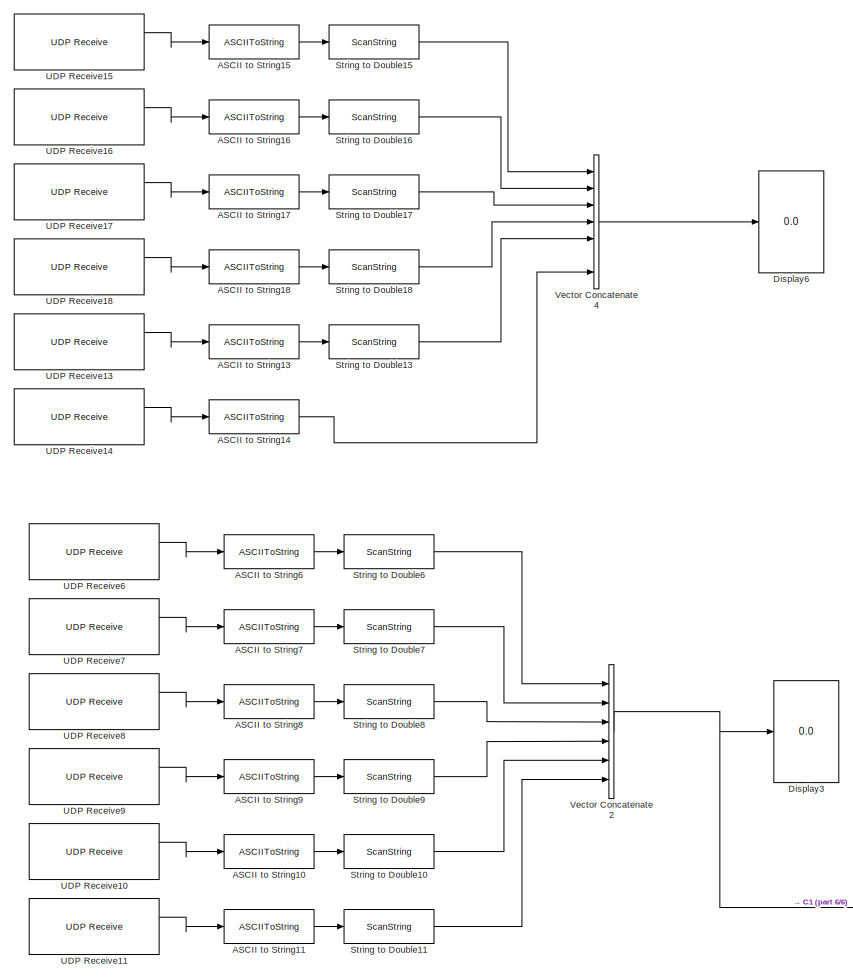
[diagram: root canvas - part 1/6, top left region]
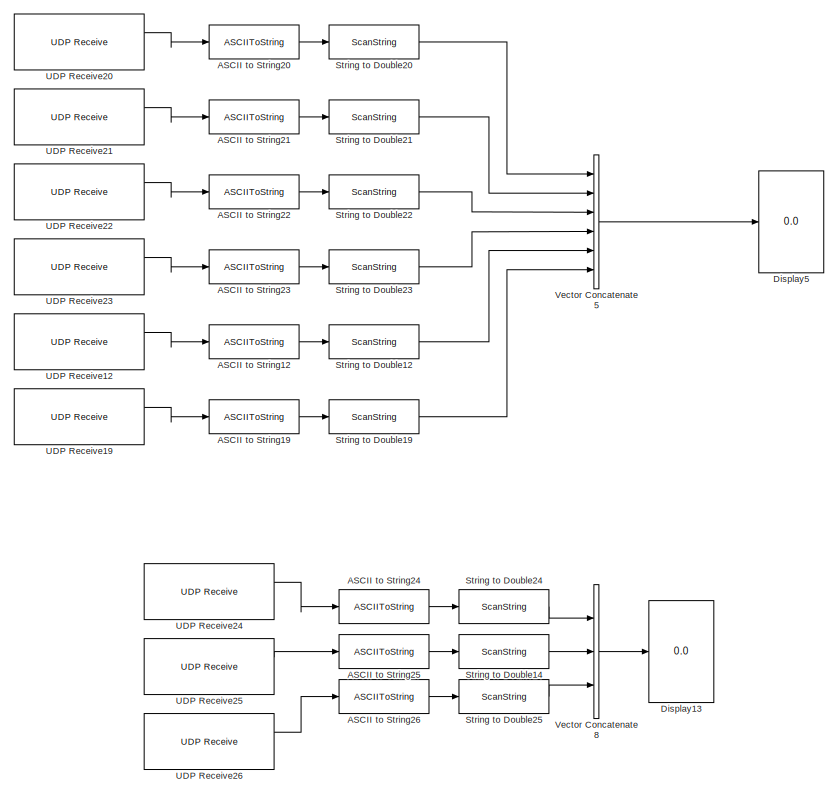
[diagram: root canvas - part 2/6, top center region]
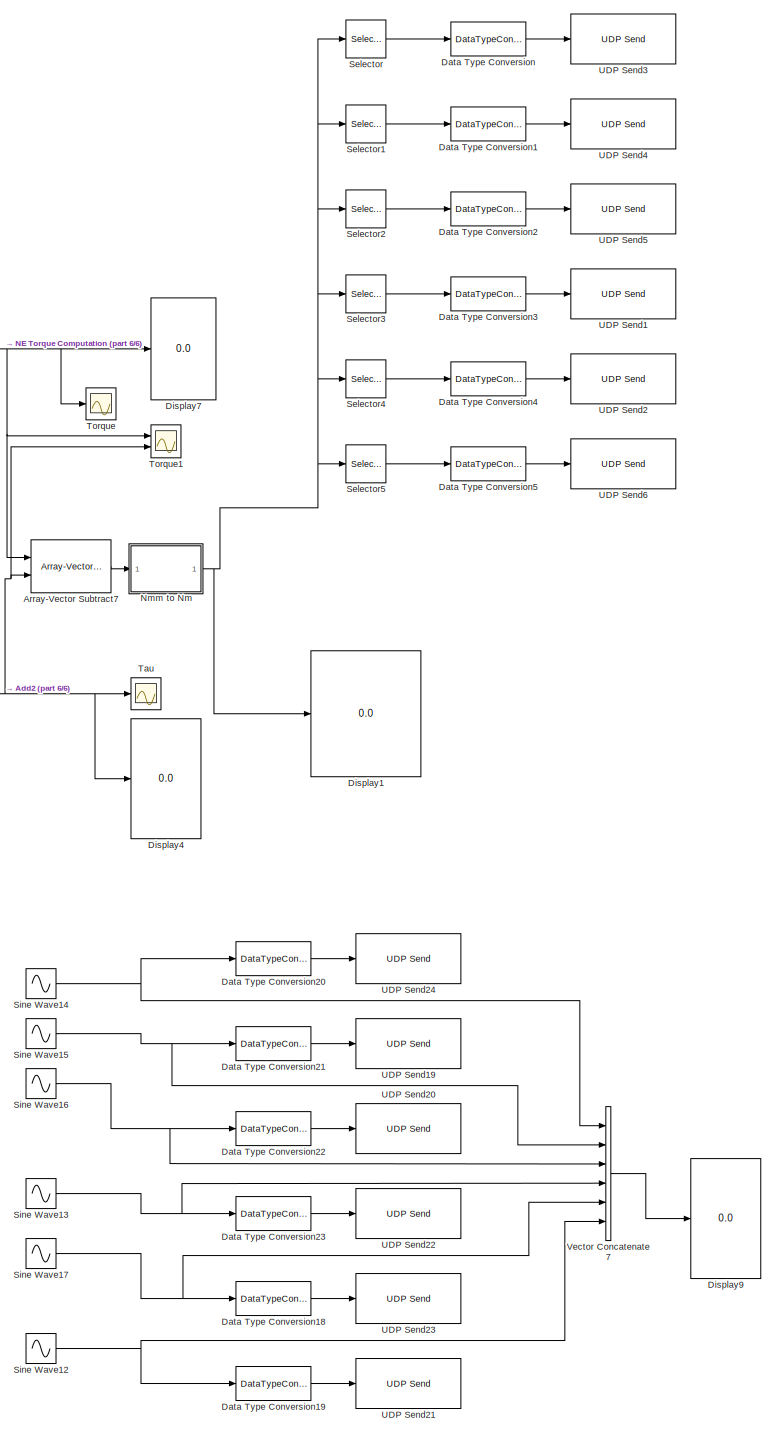
[diagram: root canvas - part 3/6, bottom right region]
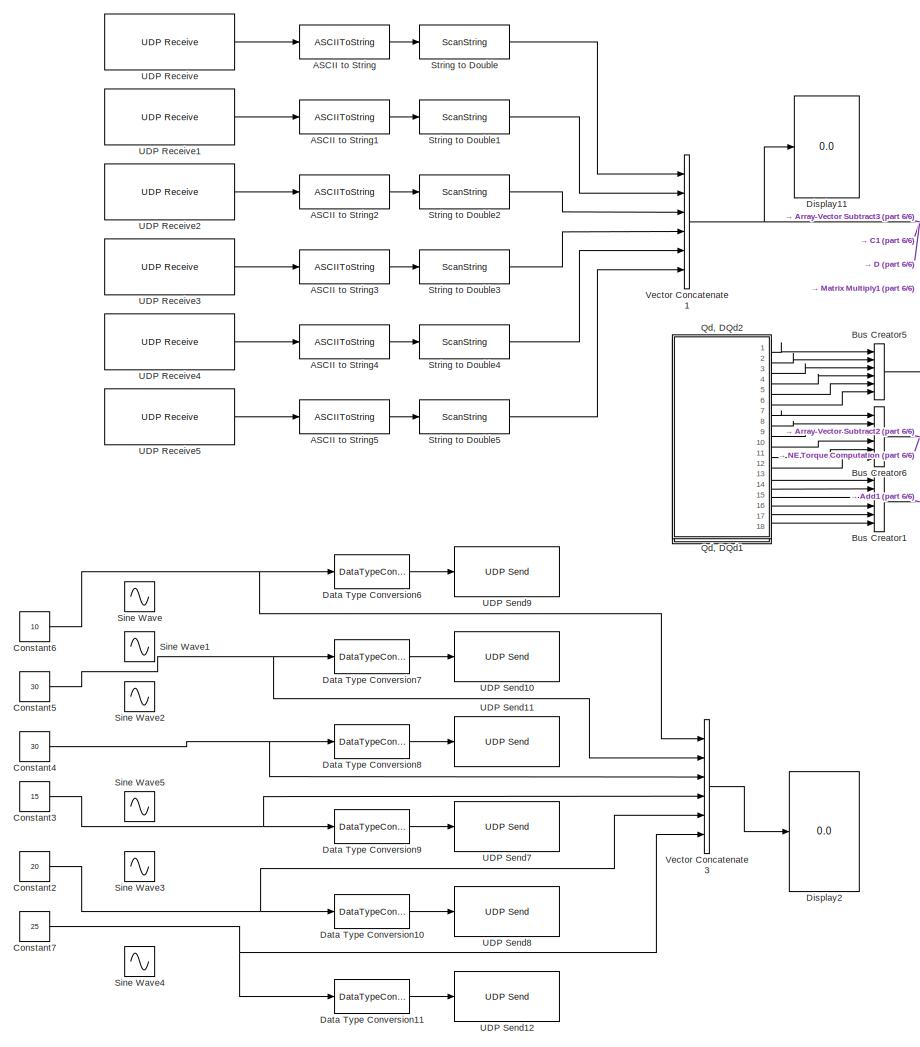
[diagram: root canvas - part 4/6, bottom left region]
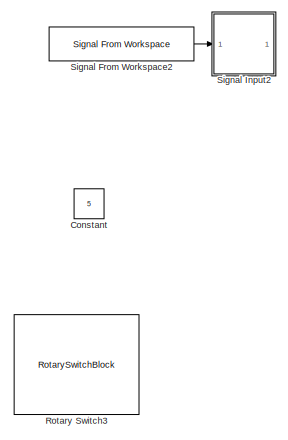
[diagram: root canvas - part 5/6, middle left region]
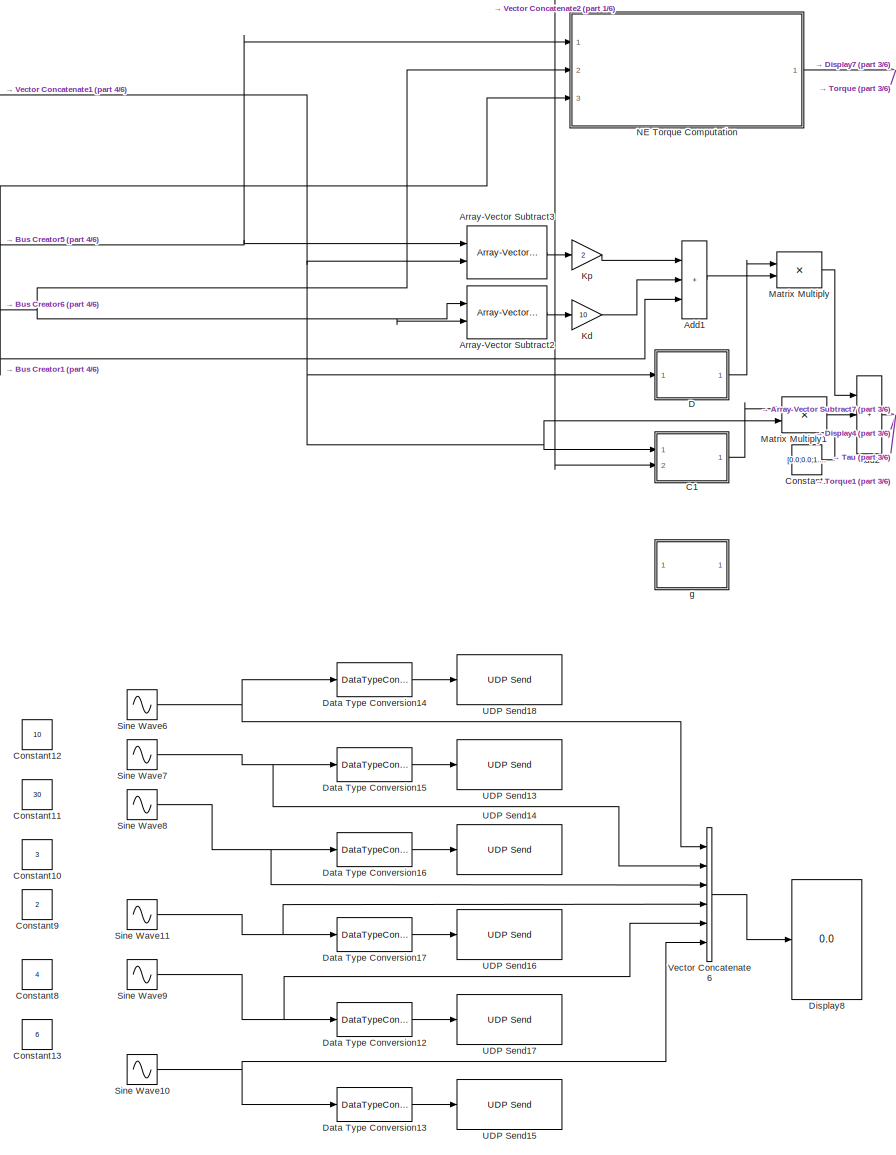
[diagram: root canvas - part 6/6, bottom center region]
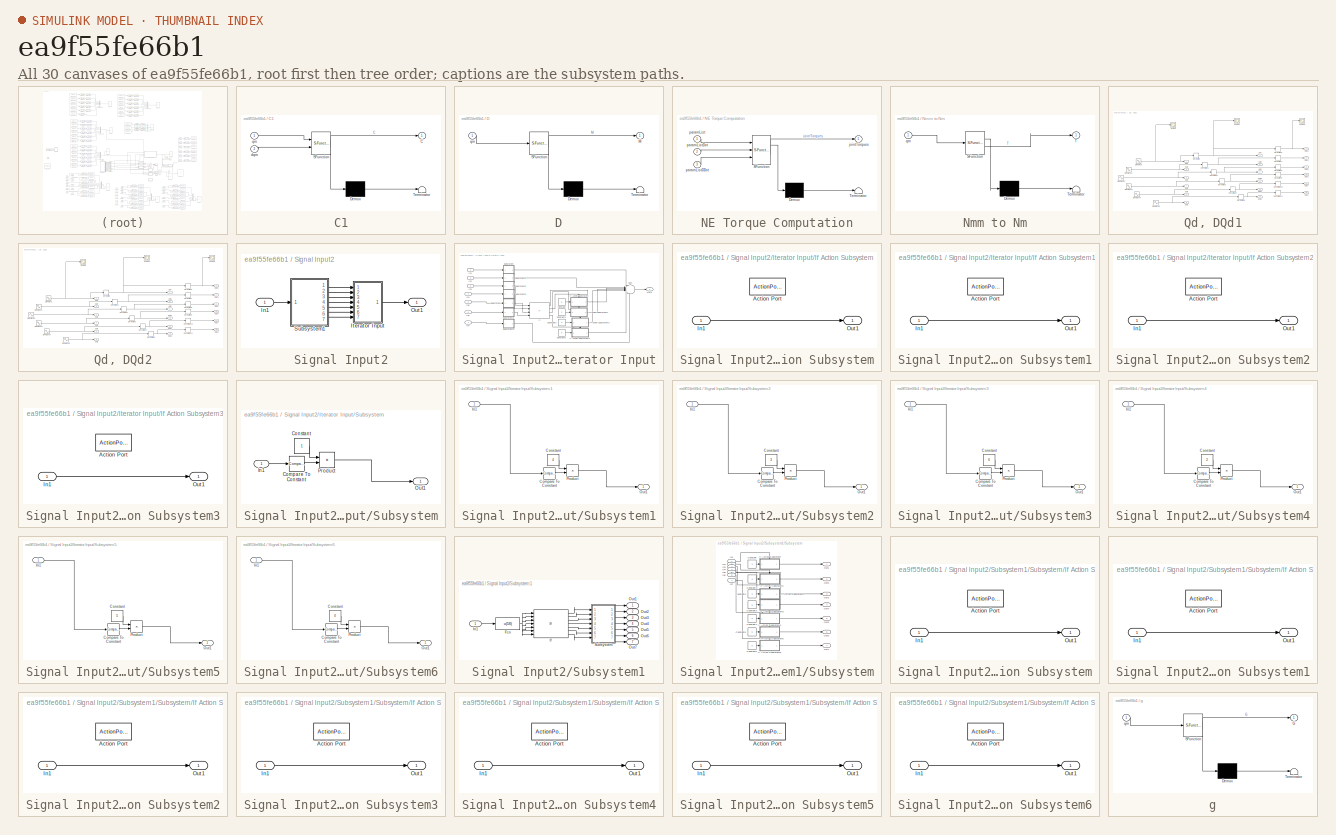
[diagram: thumbnail index - all 30 canvases of the model, root first then tree order]
MODEL slx_ea9f55fe66b1
KIND model
CONFIG AbsTol = auto
CONFIG EnableMultiTasking = off
CONFIG FixedStep = 0.001
CONFIG MaxStep = auto
CONFIG MinStep = auto
CONFIG RelTol = 1e-3
CONFIG SampleTimeConstraint = Unconstrained
CONFIG Solver = ode5
CONFIG SolverName = ode5
CONFIG StartTime = 0.0
CONFIG StopTime = 10.0
BLOCK [ASCIIToString] ASCII to String
BLOCK [ASCIIToString] ASCII to String1
BLOCK [ASCIIToString] ASCII to String10
BLOCK [ASCIIToString] ASCII to String11
BLOCK [ASCIIToString] ASCII to String12
  Commented = on
BLOCK [ASCIIToString] ASCII to String13
  Commented = on
BLOCK [ASCIIToString] ASCII to String14
  Commented = on
BLOCK [ASCIIToString] ASCII to String15
  Commented = on
BLOCK [ASCIIToString] ASCII to String16
  Commented = on
BLOCK [ASCIIToString] ASCII to String17
  Commented = on
BLOCK [ASCIIToString] ASCII to String18
  Commented = on
BLOCK [ASCIIToString] ASCII to String19
  Commented = on
BLOCK [ASCIIToString] ASCII to String2
BLOCK [ASCIIToString] ASCII to String20
  Commented = on
BLOCK [ASCIIToString] ASCII to String21
  Commented = on
BLOCK [ASCIIToString] ASCII to String22
  Commented = on
BLOCK [ASCIIToString] ASCII to String23
  Commented = on
BLOCK [ASCIIToString] ASCII to String24
BLOCK [ASCIIToString] ASCII to String25
BLOCK [ASCIIToString] ASCII to String26
BLOCK [ASCIIToString] ASCII to String3
BLOCK [ASCIIToString] ASCII to String4
BLOCK [ASCIIToString] ASCII to String5
BLOCK [ASCIIToString] ASCII to String6
BLOCK [ASCIIToString] ASCII to String7
BLOCK [ASCIIToString] ASCII to String8
BLOCK [ASCIIToString] ASCII to String9
BLOCK [Sum] Add1
  IconShape = rectangular
  Inputs = +++
  Ports = [3, 1]
BLOCK [Sum] Add2
  IconShape = rectangular
  Inputs = +++
  Ports = [3, 1]
BLOCK [Reference] Array-Vector Subtract2  REF=dspmtrx3/Array-Vector
Subtract
  Ports = [2, 1]
  SourceBlock = dspmtrx3/Array-Vector\nSubtract
  SourceProductBaseCode = DS
  SourceType = Array-Vector Subtract
BLOCK [Reference] Array-Vector Subtract3  REF=dspmtrx3/Array-Vector
Subtract
  Ports = [2, 1]
  SourceBlock = dspmtrx3/Array-Vector\nSubtract
  SourceProductBaseCode = DS
  SourceType = Array-Vector Subtract
BLOCK [Reference] Array-Vector Subtract7  REF=dspmtrx3/Array-Vector
Subtract
  Ports = [2, 1]
  SourceBlock = dspmtrx3/Array-Vector\nSubtract
  SourceProductBaseCode = DS
  SourceType = Array-Vector Subtract
BLOCK [BusCreator] Bus Creator1
  DisplayOption = bar
  InheritFromInputs = on
  Inputs = 6
  Ports = [6, 1]
BLOCK [BusCreator] Bus Creator5
  DisplayOption = bar
  InheritFromInputs = on
  Inputs = 6
  Ports = [6, 1]
BLOCK [BusCreator] Bus Creator6
  DisplayOption = bar
  InheritFromInputs = on
  Inputs = 6
  Ports = [6, 1]
BLOCK [SubSystem] C1
  ErrorFcn = Stateflow.Translate.translate
  PermitHierarchicalResolution = ExplicitOnly
  Ports = [2, 1]
  RequestExecContextInheritance = off
  SFBlockType = MATLAB Function
  TreatAsAtomicUnit = on
BLOCK [Demux] C1/ Demux 
  Outputs = 1
  Ports = [1, 1]
BLOCK [S-Function] C1/ SFunction 
  EnableBusSupport = on
  FunctionName = sf_sfun
  PortCounts = [2 2]
  Ports = [2, 2]
  SFcnIsStateOwnerBlock = off
  SFunctionDeploymentMode = off
  Tag = Stateflow S-Function 2
BLOCK [Terminator] C1/ Terminator 
BLOCK [Outport] C1/C
  VectorParamsAs1DForOutWhenUnconnected = off
BLOCK [Inport] C1/dqm
  Port = 2
BLOCK [Inport] C1/qm
BLOCK [Constant] Constant
  Commented = on
  Value = 5
BLOCK [Constant] Constant1
  Value = [0.0;0.0;1.054861899110132e+7;sqrt(3.0).*2.596216141849145e-10+4.239942722516781e+6;sqrt(3.0).*2.389220043780056e-10-3.901892440242401e+6;sqrt(3.0).*(-6.546671837132898e-10)+3.56384215796802e+6]
BLOCK [Constant] Constant10
  Commented = on
  Value = 3
BLOCK [Constant] Constant11
  Commented = on
  Value = 30
BLOCK [Constant] Constant12
  Commented = on
  Value = 10
BLOCK [Constant] Constant13
  Commented = on
  Value = 6
BLOCK [Constant] Constant2
  Value = 20
BLOCK [Constant] Constant3
  Value = 15
BLOCK [Constant] Constant4
  Value = 30
BLOCK [Constant] Constant5
  Value = 30
BLOCK [Constant] Constant6
  Value = 10
BLOCK [Constant] Constant7
  Value = 25
BLOCK [Constant] Constant8
  Commented = on
  Value = 4
BLOCK [Constant] Constant9
  Commented = on
  Value = 2
BLOCK [SubSystem] D
  ErrorFcn = Stateflow.Translate.translate
  PermitHierarchicalResolution = ExplicitOnly
  Ports = [1, 1]
  RequestExecContextInheritance = off
  SFBlockType = MATLAB Function
  TreatAsAtomicUnit = on
BLOCK [Demux] D/ Demux 
  Outputs = 1
  Ports = [1, 1]
BLOCK [S-Function] D/ SFunction 
  EnableBusSupport = on
  FunctionName = sf_sfun
  PortCounts = [1 2]
  Ports = [1, 2]
  SFcnIsStateOwnerBlock = off
  SFunctionDeploymentMode = off
  Tag = Stateflow S-Function 4
BLOCK [Terminator] D/ Terminator 
BLOCK [Outport] D/M
  VectorParamsAs1DForOutWhenUnconnected = off
BLOCK [Inport] D/qm
BLOCK [DataTypeConversion] Data Type Conversion
  Commented = on
  ConvertRealWorld = Stored Integer (SI)
  OutDataTypeStr = double
  RndMeth = Floor
  SaturateOnIntegerOverflow = off
BLOCK [DataTypeConversion] Data Type Conversion1
  Commented = on
  ConvertRealWorld = Stored Integer (SI)
  OutDataTypeStr = double
  RndMeth = Floor
  SaturateOnIntegerOverflow = off
BLOCK [DataTypeConversion] Data Type Conversion10
  ConvertRealWorld = Stored Integer (SI)
  OutDataTypeStr = double
  RndMeth = Floor
  SaturateOnIntegerOverflow = off
BLOCK [DataTypeConversion] Data Type Conversion11
  ConvertRealWorld = Stored Integer (SI)
  OutDataTypeStr = double
  RndMeth = Floor
  SaturateOnIntegerOverflow = off
BLOCK [DataTypeConversion] Data Type Conversion12
  Commented = on
  ConvertRealWorld = Stored Integer (SI)
  OutDataTypeStr = double
  RndMeth = Floor
  SaturateOnIntegerOverflow = off
BLOCK [DataTypeConversion] Data Type Conversion13
  Commented = on
  ConvertRealWorld = Stored Integer (SI)
  OutDataTypeStr = double
  RndMeth = Floor
  SaturateOnIntegerOverflow = off
BLOCK [DataTypeConversion] Data Type Conversion14
  Commented = on
  ConvertRealWorld = Stored Integer (SI)
  OutDataTypeStr = double
  RndMeth = Floor
  SaturateOnIntegerOverflow = off
BLOCK [DataTypeConversion] Data Type Conversion15
  Commented = on
  ConvertRealWorld = Stored Integer (SI)
  OutDataTypeStr = double
  RndMeth = Floor
  SaturateOnIntegerOverflow = off
BLOCK [DataTypeConversion] Data Type Conversion16
  Commented = on
  ConvertRealWorld = Stored Integer (SI)
  OutDataTypeStr = double
  RndMeth = Floor
  SaturateOnIntegerOverflow = off
BLOCK [DataTypeConversion] Data Type Conversion17
  Commented = on
  ConvertRealWorld = Stored Integer (SI)
  OutDataTypeStr = double
  RndMeth = Floor
  SaturateOnIntegerOverflow = off
BLOCK [DataTypeConversion] Data Type Conversion18
  Commented = on
  ConvertRealWorld = Stored Integer (SI)
  OutDataTypeStr = double
  RndMeth = Floor
  SaturateOnIntegerOverflow = off
BLOCK [DataTypeConversion] Data Type Conversion19
  Commented = on
  ConvertRealWorld = Stored Integer (SI)
  OutDataTypeStr = double
  RndMeth = Floor
  SaturateOnIntegerOverflow = off
BLOCK [DataTypeConversion] Data Type Conversion2
  Commented = on
  ConvertRealWorld = Stored Integer (SI)
  OutDataTypeStr = double
  RndMeth = Floor
  SaturateOnIntegerOverflow = off
BLOCK [DataTypeConversion] Data Type Conversion20
  Commented = on
  ConvertRealWorld = Stored Integer (SI)
  OutDataTypeStr = double
  RndMeth = Floor
  SaturateOnIntegerOverflow = off
BLOCK [DataTypeConversion] Data Type Conversion21
  Commented = on
  ConvertRealWorld = Stored Integer (SI)
  OutDataTypeStr = double
  RndMeth = Floor
  SaturateOnIntegerOverflow = off
BLOCK [DataTypeConversion] Data Type Conversion22
  Commented = on
  ConvertRealWorld = Stored Integer (SI)
  OutDataTypeStr = double
  RndMeth = Floor
  SaturateOnIntegerOverflow = off
BLOCK [DataTypeConversion] Data Type Conversion23
  Commented = on
  ConvertRealWorld = Stored Integer (SI)
  OutDataTypeStr = double
  RndMeth = Floor
  SaturateOnIntegerOverflow = off
BLOCK [DataTypeConversion] Data Type Conversion3
  Commented = on
  ConvertRealWorld = Stored Integer (SI)
  OutDataTypeStr = double
  RndMeth = Floor
  SaturateOnIntegerOverflow = off
BLOCK [DataTypeConversion] Data Type Conversion4
  Commented = on
  ConvertRealWorld = Stored Integer (SI)
  OutDataTypeStr = double
  RndMeth = Floor
  SaturateOnIntegerOverflow = off
BLOCK [DataTypeConversion] Data Type Conversion5
  Commented = on
  ConvertRealWorld = Stored Integer (SI)
  OutDataTypeStr = double
  RndMeth = Floor
  SaturateOnIntegerOverflow = off
BLOCK [DataTypeConversion] Data Type Conversion6
  ConvertRealWorld = Stored Integer (SI)
  OutDataTypeStr = double
  RndMeth = Floor
  SaturateOnIntegerOverflow = off
BLOCK [DataTypeConversion] Data Type Conversion7
  ConvertRealWorld = Stored Integer (SI)
  OutDataTypeStr = double
  RndMeth = Floor
  SaturateOnIntegerOverflow = off
BLOCK [DataTypeConversion] Data Type Conversion8
  ConvertRealWorld = Stored Integer (SI)
  OutDataTypeStr = double
  RndMeth = Floor
  SaturateOnIntegerOverflow = off
BLOCK [DataTypeConversion] Data Type Conversion9
  ConvertRealWorld = Stored Integer (SI)
  OutDataTypeStr = double
  RndMeth = Floor
  SaturateOnIntegerOverflow = off
BLOCK [Display] Display1
  Decimation = 1
  Ports = [1]
BLOCK [Display] Display11
  Decimation = 1
  Ports = [1]
BLOCK [Display] Display13
  Decimation = 1
  Ports = [1]
BLOCK [Display] Display2
  Decimation = 1
  Ports = [1]
BLOCK [Display] Display3
  Decimation = 1
  Ports = [1]
BLOCK [Display] Display4
  Decimation = 1
  Ports = [1]
BLOCK [Display] Display5
  Commented = on
  Decimation = 1
  Ports = [1]
BLOCK [Display] Display6
  Commented = on
  Decimation = 1
  Ports = [1]
BLOCK [Display] Display7
  Decimation = 1
  Ports = [1]
BLOCK [Display] Display8
  Commented = on
  Decimation = 1
  Ports = [1]
BLOCK [Display] Display9
  Commented = on
  Decimation = 1
  Ports = [1]
BLOCK [Gain] Kd
  Gain = 10
BLOCK [Gain] Kp
  Gain = 2
BLOCK [Product] Matrix Multiply
  Multiplication = Matrix(*)
  Ports = [2, 1]
BLOCK [Product] Matrix Multiply1
  Multiplication = Matrix(*)
  Ports = [2, 1]
BLOCK [SubSystem] NE Torque Computation
  ErrorFcn = Stateflow.Translate.translate
  PermitHierarchicalResolution = ExplicitOnly
  Ports = [3, 1]
  RequestExecContextInheritance = off
  SFBlockType = MATLAB Function
  TreatAsAtomicUnit = on
BLOCK [Demux] NE Torque Computation/ Demux 
  Outputs = 1
  Ports = [1, 1]
BLOCK [S-Function] NE Torque Computation/ SFunction 
  EnableBusSupport = on
  FunctionName = sf_sfun
  PortCounts = [3 2]
  Ports = [3, 2]
  SFcnIsStateOwnerBlock = off
  SFunctionDeploymentMode = off
  Tag = Stateflow S-Function 8
BLOCK [Terminator] NE Torque Computation/ Terminator 
BLOCK [Outport] NE Torque Computation/jointTorques
  VectorParamsAs1DForOutWhenUnconnected = off
BLOCK [Inport] NE Torque Computation/paramList
BLOCK [Inport] NE Torque Computation/paramListDDot
  Port = 3
BLOCK [Inport] NE Torque Computation/paramListDot
  Port = 2
BLOCK [SubSystem] Nmm to Nm
  ErrorFcn = Stateflow.Translate.translate
  PermitHierarchicalResolution = ExplicitOnly
  Ports = [1, 1]
  RequestExecContextInheritance = off
  SFBlockType = MATLAB Function
  TreatAsAtomicUnit = on
BLOCK [Demux] Nmm to Nm/ Demux 
  Outputs = 1
  Ports = [1, 1]
BLOCK [S-Function] Nmm to Nm/ SFunction 
  EnableBusSupport = on
  FunctionName = sf_sfun
  PortCounts = [1 2]
  Ports = [1, 2]
  SFcnIsStateOwnerBlock = off
  SFunctionDeploymentMode = off
  Tag = Stateflow S-Function 3
BLOCK [Terminator] Nmm to Nm/ Terminator 
BLOCK [Outport] Nmm to Nm/T
BLOCK [Inport] Nmm to Nm/qm
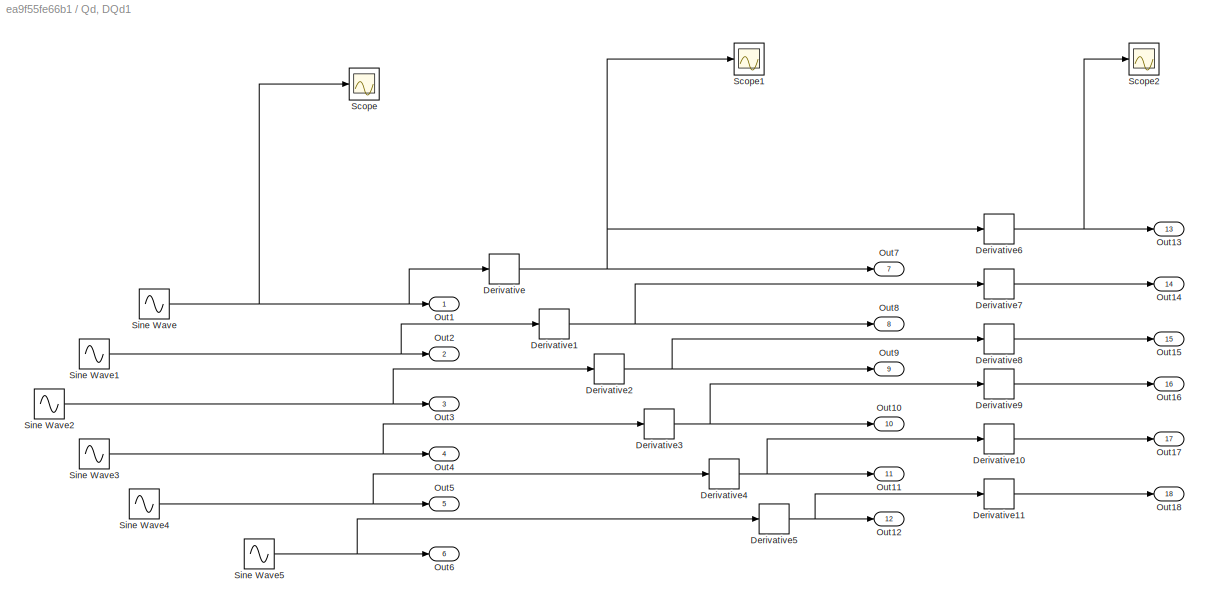
BLOCK [SubSystem] Qd, DQd1
  Ports = [0, 18]
  RequestExecContextInheritance = off
BLOCK [Derivative] Qd, DQd1/Derivative
BLOCK [Derivative] Qd, DQd1/Derivative1
BLOCK [Derivative] Qd, DQd1/Derivative10
BLOCK [Derivative] Qd, DQd1/Derivative11
BLOCK [Derivative] Qd, DQd1/Derivative2
BLOCK [Derivative] Qd, DQd1/Derivative3
BLOCK [Derivative] Qd, DQd1/Derivative4
BLOCK [Derivative] Qd, DQd1/Derivative5
BLOCK [Derivative] Qd, DQd1/Derivative6
BLOCK [Derivative] Qd, DQd1/Derivative7
BLOCK [Derivative] Qd, DQd1/Derivative8
BLOCK [Derivative] Qd, DQd1/Derivative9
BLOCK [Outport] Qd, DQd1/Out1
  VectorParamsAs1DForOutWhenUnconnected = off
BLOCK [Outport] Qd, DQd1/Out10
  Port = 10
  VectorParamsAs1DForOutWhenUnconnected = off
BLOCK [Outport] Qd, DQd1/Out11
  Port = 11
  VectorParamsAs1DForOutWhenUnconnected = off
BLOCK [Outport] Qd, DQd1/Out12
  Port = 12
  VectorParamsAs1DForOutWhenUnconnected = off
BLOCK [Outport] Qd, DQd1/Out13
  Port = 13
  VectorParamsAs1DForOutWhenUnconnected = off
BLOCK [Outport] Qd, DQd1/Out14
  Port = 14
  VectorParamsAs1DForOutWhenUnconnected = off
BLOCK [Outport] Qd, DQd1/Out15
  Port = 15
  VectorParamsAs1DForOutWhenUnconnected = off
BLOCK [Outport] Qd, DQd1/Out16
  Port = 16
  VectorParamsAs1DForOutWhenUnconnected = off
BLOCK [Outport] Qd, DQd1/Out17
  Port = 17
  VectorParamsAs1DForOutWhenUnconnected = off
BLOCK [Outport] Qd, DQd1/Out18
  Port = 18
  VectorParamsAs1DForOutWhenUnconnected = off
BLOCK [Outport] Qd, DQd1/Out2
  Port = 2
  VectorParamsAs1DForOutWhenUnconnected = off
BLOCK [Outport] Qd, DQd1/Out3
  Port = 3
  VectorParamsAs1DForOutWhenUnconnected = off
BLOCK [Outport] Qd, DQd1/Out4
  Port = 4
  VectorParamsAs1DForOutWhenUnconnected = off
BLOCK [Outport] Qd, DQd1/Out5
  Port = 5
  VectorParamsAs1DForOutWhenUnconnected = off
BLOCK [Outport] Qd, DQd1/Out6
  Port = 6
  VectorParamsAs1DForOutWhenUnconnected = off
BLOCK [Outport] Qd, DQd1/Out7
  Port = 7
  VectorParamsAs1DForOutWhenUnconnected = off
BLOCK [Outport] Qd, DQd1/Out8
  Port = 8
  VectorParamsAs1DForOutWhenUnconnected = off
BLOCK [Outport] Qd, DQd1/Out9
  Port = 9
  VectorParamsAs1DForOutWhenUnconnected = off
BLOCK [Scope] Qd, DQd1/Scope
  Floating = off
  NumInputPorts = 1
  Ports = [1]
  ScopeSpecificationString = Simulink.scopes.TimeScopeBlockCfg('CurrentConfiguration', extmgr.ConfigurationSet(extmgr.Configuration('Core','General UI',true),extmgr.Configuration('Core','Source UI',true),extmgr.Configuration('Sources','WiredSimulink',true,'DataLoggingVariableName','ScopeData1'),extmgr.Configuration('Visuals','Time Domain',true,'SerializedDisplays',{struct('MinYLimReal','-0.125','MaxYLimReal','0.125','YLabelRe...<+1384ch>
BLOCK [Scope] Qd, DQd1/Scope1
  Floating = off
  NumInputPorts = 1
  Ports = [1]
  ScopeSpecificationString = Simulink.scopes.TimeScopeBlockCfg('CurrentConfiguration', extmgr.ConfigurationSet(extmgr.Configuration('Core','General UI',true),extmgr.Configuration('Core','Source UI',true),extmgr.Configuration('Sources','WiredSimulink',true,'DataLoggingVariableName','ScopeData2'),extmgr.Configuration('Visuals','Time Domain',true,'SerializedDisplays',{struct('MinYLimReal','-0.12457','MaxYLimReal','0.12495','YLab...<+1397ch>
BLOCK [Scope] Qd, DQd1/Scope2
  Floating = off
  NumInputPorts = 1
  Ports = [1]
  ScopeSpecificationString = Simulink.scopes.TimeScopeBlockCfg('CurrentConfiguration', extmgr.ConfigurationSet(extmgr.Configuration('Core','General UI',true),extmgr.Configuration('Core','Source UI',true),extmgr.Configuration('Sources','WiredSimulink',true,'DataLoggingVariableName','ScopeData3'),extmgr.Configuration('Visuals','Time Domain',true,'SerializedDisplays',{struct('MinYLimReal','-20288901.70965','MaxYLimReal','1826001...<+1457ch>
BLOCK [Sin] Qd, DQd1/Sine Wave
  Amplitude = .1
  Ports = [0, 1]
  SampleTime = 0
BLOCK [Sin] Qd, DQd1/Sine Wave1
  Ports = [0, 1]
  SampleTime = 0
BLOCK [Sin] Qd, DQd1/Sine Wave2
  Ports = [0, 1]
  SampleTime = 0
BLOCK [Sin] Qd, DQd1/Sine Wave3
  Ports = [0, 1]
  SampleTime = 0
BLOCK [Sin] Qd, DQd1/Sine Wave4
  Ports = [0, 1]
  SampleTime = 0
BLOCK [Sin] Qd, DQd1/Sine Wave5
  Ports = [0, 1]
  SampleTime = 0
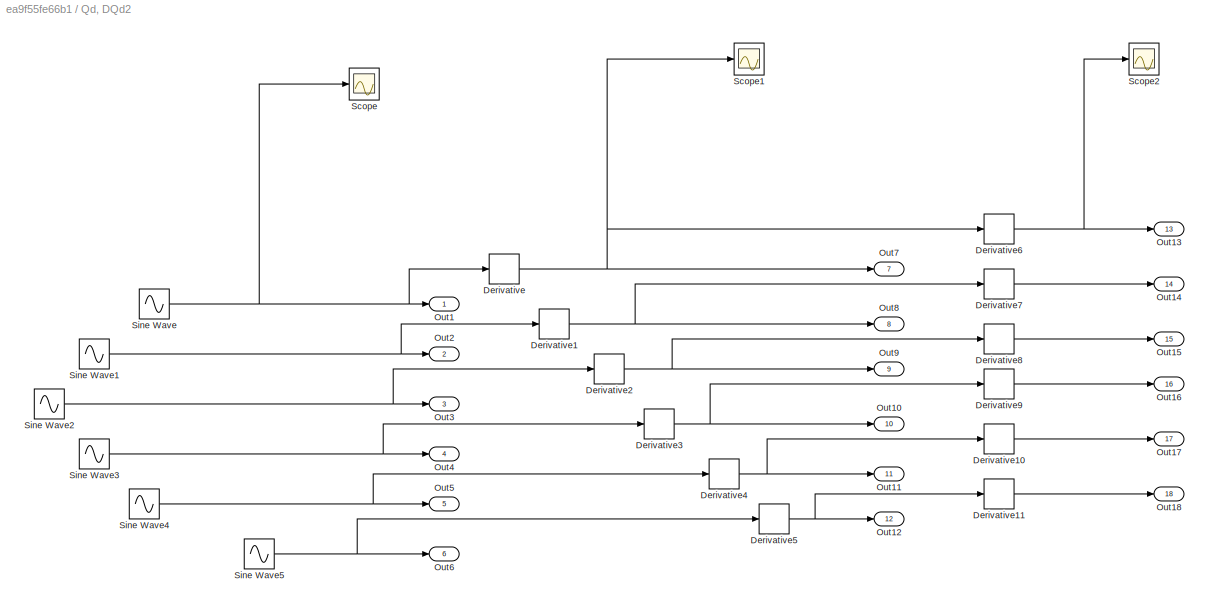
BLOCK [SubSystem] Qd, DQd2
  Ports = [0, 18]
  RequestExecContextInheritance = off
BLOCK [Derivative] Qd, DQd2/Derivative
BLOCK [Derivative] Qd, DQd2/Derivative1
BLOCK [Derivative] Qd, DQd2/Derivative10
BLOCK [Derivative] Qd, DQd2/Derivative11
BLOCK [Derivative] Qd, DQd2/Derivative2
BLOCK [Derivative] Qd, DQd2/Derivative3
BLOCK [Derivative] Qd, DQd2/Derivative4
BLOCK [Derivative] Qd, DQd2/Derivative5
BLOCK [Derivative] Qd, DQd2/Derivative6
BLOCK [Derivative] Qd, DQd2/Derivative7
BLOCK [Derivative] Qd, DQd2/Derivative8
BLOCK [Derivative] Qd, DQd2/Derivative9
BLOCK [Outport] Qd, DQd2/Out1
  VectorParamsAs1DForOutWhenUnconnected = off
BLOCK [Outport] Qd, DQd2/Out10
  Port = 10
  VectorParamsAs1DForOutWhenUnconnected = off
BLOCK [Outport] Qd, DQd2/Out11
  Port = 11
  VectorParamsAs1DForOutWhenUnconnected = off
BLOCK [Outport] Qd, DQd2/Out12
  Port = 12
  VectorParamsAs1DForOutWhenUnconnected = off
BLOCK [Outport] Qd, DQd2/Out13
  Port = 13
  VectorParamsAs1DForOutWhenUnconnected = off
BLOCK [Outport] Qd, DQd2/Out14
  Port = 14
  VectorParamsAs1DForOutWhenUnconnected = off
BLOCK [Outport] Qd, DQd2/Out15
  Port = 15
  VectorParamsAs1DForOutWhenUnconnected = off
BLOCK [Outport] Qd, DQd2/Out16
  Port = 16
  VectorParamsAs1DForOutWhenUnconnected = off
BLOCK [Outport] Qd, DQd2/Out17
  Port = 17
  VectorParamsAs1DForOutWhenUnconnected = off
BLOCK [Outport] Qd, DQd2/Out18
  Port = 18
  VectorParamsAs1DForOutWhenUnconnected = off
BLOCK [Outport] Qd, DQd2/Out2
  Port = 2
  VectorParamsAs1DForOutWhenUnconnected = off
BLOCK [Outport] Qd, DQd2/Out3
  Port = 3
  VectorParamsAs1DForOutWhenUnconnected = off
BLOCK [Outport] Qd, DQd2/Out4
  Port = 4
  VectorParamsAs1DForOutWhenUnconnected = off
BLOCK [Outport] Qd, DQd2/Out5
  Port = 5
  VectorParamsAs1DForOutWhenUnconnected = off
BLOCK [Outport] Qd, DQd2/Out6
  Port = 6
  VectorParamsAs1DForOutWhenUnconnected = off
BLOCK [Outport] Qd, DQd2/Out7
  Port = 7
  VectorParamsAs1DForOutWhenUnconnected = off
BLOCK [Outport] Qd, DQd2/Out8
  Port = 8
  VectorParamsAs1DForOutWhenUnconnected = off
BLOCK [Outport] Qd, DQd2/Out9
  Port = 9
  VectorParamsAs1DForOutWhenUnconnected = off
BLOCK [Scope] Qd, DQd2/Scope
  Floating = off
  NumInputPorts = 1
  Ports = [1]
  ScopeSpecificationString = Simulink.scopes.TimeScopeBlockCfg('CurrentConfiguration', extmgr.ConfigurationSet(extmgr.Configuration('Core','General UI',true),extmgr.Configuration('Core','Source UI',true),extmgr.Configuration('Sources','WiredSimulink',true,'DataLoggingVariableName','ScopeData1'),extmgr.Configuration('Visuals','Time Domain',true,'SerializedDisplays',{struct('MinYLimReal','-0.125','MaxYLimReal','0.125','YLabelRe...<+1384ch>
BLOCK [Scope] Qd, DQd2/Scope1
  Floating = off
  NumInputPorts = 1
  Ports = [1]
  ScopeSpecificationString = Simulink.scopes.TimeScopeBlockCfg('CurrentConfiguration', extmgr.ConfigurationSet(extmgr.Configuration('Core','General UI',true),extmgr.Configuration('Core','Source UI',true),extmgr.Configuration('Sources','WiredSimulink',true,'DataLoggingVariableName','ScopeData2'),extmgr.Configuration('Visuals','Time Domain',true,'SerializedDisplays',{struct('MinYLimReal','-0.12457','MaxYLimReal','0.12495','YLab...<+1397ch>
BLOCK [Scope] Qd, DQd2/Scope2
  Floating = off
  NumInputPorts = 1
  Ports = [1]
  ScopeSpecificationString = Simulink.scopes.TimeScopeBlockCfg('CurrentConfiguration', extmgr.ConfigurationSet(extmgr.Configuration('Core','General UI',true),extmgr.Configuration('Core','Source UI',true),extmgr.Configuration('Sources','WiredSimulink',true,'DataLoggingVariableName','ScopeData3'),extmgr.Configuration('Visuals','Time Domain',true,'SerializedDisplays',{struct('MinYLimReal','-20288901.70965','MaxYLimReal','1826001...<+1457ch>
BLOCK [Sin] Qd, DQd2/Sine Wave
  Amplitude = .1
  Ports = [0, 1]
  SampleTime = 0
BLOCK [Sin] Qd, DQd2/Sine Wave1
  Ports = [0, 1]
  SampleTime = 0
BLOCK [Sin] Qd, DQd2/Sine Wave2
  Ports = [0, 1]
  SampleTime = 0
BLOCK [Sin] Qd, DQd2/Sine Wave3
  Ports = [0, 1]
  SampleTime = 0
BLOCK [Sin] Qd, DQd2/Sine Wave4
  Ports = [0, 1]
  SampleTime = 0
BLOCK [Sin] Qd, DQd2/Sine Wave5
  Ports = [0, 1]
  SampleTime = 0
BLOCK [RotarySwitchBlock] Rotary Switch3
  Commented = on
BLOCK [Selector] Selector
  Commented = on
  IndexOptions = Index vector (dialog)
  Indices = [1]
  InputPortWidth = 6
  OutputSizes = 1
  Ports = [1, 1]
BLOCK [Selector] Selector1
  Commented = on
  IndexOptions = Index vector (dialog)
  Indices = [2]
  InputPortWidth = 6
  OutputSizes = 1
  Ports = [1, 1]
BLOCK [Selector] Selector2
  Commented = on
  IndexOptions = Index vector (dialog)
  Indices = [3]
  InputPortWidth = 6
  OutputSizes = 1
  Ports = [1, 1]
BLOCK [Selector] Selector3
  Commented = on
  IndexOptions = Index vector (dialog)
  Indices = [4]
  InputPortWidth = 6
  OutputSizes = 1
  Ports = [1, 1]
BLOCK [Selector] Selector4
  Commented = on
  IndexOptions = Index vector (dialog)
  Indices = [5]
  InputPortWidth = 6
  OutputSizes = 1
  Ports = [1, 1]
BLOCK [Selector] Selector5
  Commented = on
  IndexOptions = Index vector (dialog)
  Indices = [6]
  InputPortWidth = 6
  OutputSizes = 1
  Ports = [1, 1]
BLOCK [Reference] Signal From Workspace2  REF=dspsrcs4/Signal From
Workspace
  Commented = on
  Ports = [0, 1]
  SourceBlock = dspsrcs4/Signal From\nWorkspace
  SourceProductBaseCode = DS
  SourceType = Signal From Workspace
BLOCK [SubSystem] Signal Input2
  Commented = on
  Ports = [1, 1]
  RequestExecContextInheritance = off
BLOCK [Inport] Signal Input2/In1
BLOCK [SubSystem] Signal Input2/Iterator Input
  Ports = [7, 1]
  RequestExecContextInheritance = off
BLOCK [Constant] Signal Input2/Iterator Input/Constant
  Value = 5
BLOCK [Constant] Signal Input2/Iterator Input/Constant1
  Value = 2
BLOCK [Constant] Signal Input2/Iterator Input/Constant2
  Value = 3
BLOCK [Constant] Signal Input2/Iterator Input/Constant3
  Value = 6
BLOCK [If] Signal Input2/Iterator Input/If
  ElseIfExpressions = u2==6,u3==2,u4==5
  IfExpression = u1 == 3
  NumInputs = 4
  Ports = [4, 4]
  ShowElse = off
BLOCK [SubSystem] Signal Input2/Iterator Input/If Action Subsystem
  Ports = [1, 1, 0, 0, 0, 0, 0, 1]
  RequestExecContextInheritance = off
  TreatAsAtomicUnit = on
BLOCK [ActionPort] Signal Input2/Iterator Input/If Action Subsystem/Action Port
  ActionPortLabel = if(u1 == 3)
  InitializeStates = reset
BLOCK [Inport] Signal Input2/Iterator Input/If Action Subsystem/In1
BLOCK [Outport] Signal Input2/Iterator Input/If Action Subsystem/Out1
  InitialOutput = [0]
  OutputWhenDisabled = reset
BLOCK [SubSystem] Signal Input2/Iterator Input/If Action Subsystem1
  Ports = [1, 1, 0, 0, 0, 0, 0, 1]
  RequestExecContextInheritance = off
  TreatAsAtomicUnit = on
BLOCK [ActionPort] Signal Input2/Iterator Input/If Action Subsystem1/Action Port
  ActionPortLabel = elseif(u2==6)
  InitializeStates = reset
BLOCK [Inport] Signal Input2/Iterator Input/If Action Subsystem1/In1
BLOCK [Outport] Signal Input2/Iterator Input/If Action Subsystem1/Out1
  InitialOutput = [0]
  OutputWhenDisabled = reset
BLOCK [SubSystem] Signal Input2/Iterator Input/If Action Subsystem2
  Ports = [1, 1, 0, 0, 0, 0, 0, 1]
  RequestExecContextInheritance = off
  TreatAsAtomicUnit = on
BLOCK [ActionPort] Signal Input2/Iterator Input/If Action Subsystem2/Action Port
  ActionPortLabel = elseif(u3==2)
  InitializeStates = reset
BLOCK [Inport] Signal Input2/Iterator Input/If Action Subsystem2/In1
BLOCK [Outport] Signal Input2/Iterator Input/If Action Subsystem2/Out1
  InitialOutput = [0]
  OutputWhenDisabled = reset
BLOCK [SubSystem] Signal Input2/Iterator Input/If Action Subsystem3
  Ports = [1, 1, 0, 0, 0, 0, 0, 1]
  RequestExecContextInheritance = off
  TreatAsAtomicUnit = on
BLOCK [ActionPort] Signal Input2/Iterator Input/If Action Subsystem3/Action Port
  ActionPortLabel = elseif(u4==5)
  InitializeStates = reset
BLOCK [Inport] Signal Input2/Iterator Input/If Action Subsystem3/In1
BLOCK [Outport] Signal Input2/Iterator Input/If Action Subsystem3/Out1
  InitialOutput = [0]
  OutputWhenDisabled = reset
BLOCK [Inport] Signal Input2/Iterator Input/In1
BLOCK [Inport] Signal Input2/Iterator Input/In2
  Port = 2
BLOCK [Inport] Signal Input2/Iterator Input/In3
  Port = 3
BLOCK [Inport] Signal Input2/Iterator Input/In4
  Port = 4
BLOCK [Inport] Signal Input2/Iterator Input/In5
  Port = 5
BLOCK [Inport] Signal Input2/Iterator Input/In6
  Port = 6
BLOCK [Inport] Signal Input2/Iterator Input/In7
  Port = 7
BLOCK [Outport] Signal Input2/Iterator Input/Out1
BLOCK [SubSystem] Signal Input2/Iterator Input/Subsystem
  Ports = [1, 1]
  RequestExecContextInheritance = off
BLOCK [Reference] Signal Input2/Iterator Input/Subsystem/Compare To Constant  REF=simulink/Logic and Bit
Operations/Compare
To Constant
  Ports = [1, 1]
  SourceBlock = simulink/Logic and Bit\nOperations/Compare\nTo Constant
  SourceProductBaseCode = SL
  SourceType = Compare To Constant
BLOCK [Constant] Signal Input2/Iterator Input/Subsystem/Constant
BLOCK [Inport] Signal Input2/Iterator Input/Subsystem/In1
BLOCK [Outport] Signal Input2/Iterator Input/Subsystem/Out1
BLOCK [Product] Signal Input2/Iterator Input/Subsystem/Product
  Ports = [2, 1]
BLOCK [SubSystem] Signal Input2/Iterator Input/Subsystem1
  Ports = [1, 1]
  RequestExecContextInheritance = off
BLOCK [Reference] Signal Input2/Iterator Input/Subsystem1/Compare To Constant  REF=simulink/Logic and Bit
Operations/Compare
To Constant
  Ports = [1, 1]
  SourceBlock = simulink/Logic and Bit\nOperations/Compare\nTo Constant
  SourceProductBaseCode = SL
  SourceType = Compare To Constant
BLOCK [Constant] Signal Input2/Iterator Input/Subsystem1/Constant
  Value = 4
BLOCK [Inport] Signal Input2/Iterator Input/Subsystem1/In1
BLOCK [Outport] Signal Input2/Iterator Input/Subsystem1/Out1
BLOCK [Product] Signal Input2/Iterator Input/Subsystem1/Product
  Ports = [2, 1]
BLOCK [SubSystem] Signal Input2/Iterator Input/Subsystem2
  Ports = [1, 1]
  RequestExecContextInheritance = off
BLOCK [Reference] Signal Input2/Iterator Input/Subsystem2/Compare To Constant  REF=simulink/Logic and Bit
Operations/Compare
To Constant
  Ports = [1, 1]
  SourceBlock = simulink/Logic and Bit\nOperations/Compare\nTo Constant
  SourceProductBaseCode = SL
  SourceType = Compare To Constant
BLOCK [Constant] Signal Input2/Iterator Input/Subsystem2/Constant
  Value = 3
BLOCK [Inport] Signal Input2/Iterator Input/Subsystem2/In1
BLOCK [Outport] Signal Input2/Iterator Input/Subsystem2/Out1
BLOCK [Product] Signal Input2/Iterator Input/Subsystem2/Product
  Ports = [2, 1]
BLOCK [SubSystem] Signal Input2/Iterator Input/Subsystem3
  Ports = [1, 1]
  RequestExecContextInheritance = off
BLOCK [Reference] Signal Input2/Iterator Input/Subsystem3/Compare To Constant  REF=simulink/Logic and Bit
Operations/Compare
To Constant
  Ports = [1, 1]
  SourceBlock = simulink/Logic and Bit\nOperations/Compare\nTo Constant
  SourceProductBaseCode = SL
  SourceType = Compare To Constant
BLOCK [Constant] Signal Input2/Iterator Input/Subsystem3/Constant
  Value = 6
BLOCK [Inport] Signal Input2/Iterator Input/Subsystem3/In1
BLOCK [Outport] Signal Input2/Iterator Input/Subsystem3/Out1
BLOCK [Product] Signal Input2/Iterator Input/Subsystem3/Product
  Ports = [2, 1]
BLOCK [SubSystem] Signal Input2/Iterator Input/Subsystem4
  Ports = [1, 1]
  RequestExecContextInheritance = off
BLOCK [Reference] Signal Input2/Iterator Input/Subsystem4/Compare To Constant  REF=simulink/Logic and Bit
Operations/Compare
To Constant
  Ports = [1, 1]
  SourceBlock = simulink/Logic and Bit\nOperations/Compare\nTo Constant
  SourceProductBaseCode = SL
  SourceType = Compare To Constant
BLOCK [Constant] Signal Input2/Iterator Input/Subsystem4/Constant
  Value = 2
BLOCK [Inport] Signal Input2/Iterator Input/Subsystem4/In1
BLOCK [Outport] Signal Input2/Iterator Input/Subsystem4/Out1
BLOCK [Product] Signal Input2/Iterator Input/Subsystem4/Product
  Ports = [2, 1]
BLOCK [SubSystem] Signal Input2/Iterator Input/Subsystem5
  Ports = [1, 1]
  RequestExecContextInheritance = off
BLOCK [Reference] Signal Input2/Iterator Input/Subsystem5/Compare To Constant  REF=simulink/Logic and Bit
Operations/Compare
To Constant
  Ports = [1, 1]
  SourceBlock = simulink/Logic and Bit\nOperations/Compare\nTo Constant
  SourceProductBaseCode = SL
  SourceType = Compare To Constant
BLOCK [Constant] Signal Input2/Iterator Input/Subsystem5/Constant
  Value = 5
BLOCK [Inport] Signal Input2/Iterator Input/Subsystem5/In1
BLOCK [Outport] Signal Input2/Iterator Input/Subsystem5/Out1
BLOCK [Product] Signal Input2/Iterator Input/Subsystem5/Product
  Ports = [2, 1]
BLOCK [SubSystem] Signal Input2/Iterator Input/Subsystem6
  Ports = [1, 1]
  RequestExecContextInheritance = off
BLOCK [Reference] Signal Input2/Iterator Input/Subsystem6/Compare To Constant  REF=simulink/Logic and Bit
Operations/Compare
To Constant
  Ports = [1, 1]
  SourceBlock = simulink/Logic and Bit\nOperations/Compare\nTo Constant
  SourceProductBaseCode = SL
  SourceType = Compare To Constant
BLOCK [Constant] Signal Input2/Iterator Input/Subsystem6/Constant
  Value = 0
BLOCK [Inport] Signal Input2/Iterator Input/Subsystem6/In1
BLOCK [Outport] Signal Input2/Iterator Input/Subsystem6/Out1
BLOCK [Product] Signal Input2/Iterator Input/Subsystem6/Product
  Ports = [2, 1]
BLOCK [Sum] Signal Input2/Iterator Input/Sum
  Inputs = |+++++++
  Ports = [7, 1]
BLOCK [Outport] Signal Input2/Out1
BLOCK [SubSystem] Signal Input2/Subsystem1
  Ports = [1, 7]
  RequestExecContextInheritance = off
BLOCK [Fcn] Signal Input2/Subsystem1/Fcn
  Expr = u(58)
BLOCK [If] Signal Input2/Subsystem1/If
  ElseIfExpressions = u2==114,u3==105,u4==111,u4==117,u5==100,u7==102
  IfExpression = u1 == 108
  NumInputs = 7
  Ports = [7, 7]
  ShowElse = off
BLOCK [Inport] Signal Input2/Subsystem1/In1
BLOCK [Outport] Signal Input2/Subsystem1/Out1
BLOCK [Outport] Signal Input2/Subsystem1/Out2
  Port = 2
BLOCK [Outport] Signal Input2/Subsystem1/Out3
  Port = 3
BLOCK [Outport] Signal Input2/Subsystem1/Out4
  Port = 4
BLOCK [Outport] Signal Input2/Subsystem1/Out5
  Port = 5
BLOCK [Outport] Signal Input2/Subsystem1/Out6
  Port = 6
BLOCK [Outport] Signal Input2/Subsystem1/Out7
  Port = 7
BLOCK [SubSystem] Signal Input2/Subsystem1/Subsystem
  Ports = [7, 7]
  RequestExecContextInheritance = off
BLOCK [Constant] Signal Input2/Subsystem1/Subsystem/Constant
BLOCK [Constant] Signal Input2/Subsystem1/Subsystem/Constant1
  Value = 4
BLOCK [Constant] Signal Input2/Subsystem1/Subsystem/Constant2
  Value = 3
BLOCK [Constant] Signal Input2/Subsystem1/Subsystem/Constant3
  Value = 6
BLOCK [Constant] Signal Input2/Subsystem1/Subsystem/Constant4
  Value = 2
BLOCK [Constant] Signal Input2/Subsystem1/Subsystem/Constant5
  Value = 5
BLOCK [Constant] Signal Input2/Subsystem1/Subsystem/Constant6
  Value = 0
BLOCK [SubSystem] Signal Input2/Subsystem1/Subsystem/If Action Subsystem
  Ports = [1, 1, 0, 0, 0, 0, 0, 1]
  RequestExecContextInheritance = off
  TreatAsAtomicUnit = on
BLOCK [ActionPort] Signal Input2/Subsystem1/Subsystem/If Action Subsystem/Action Port
  ActionPortLabel = if(u1 == 108)
  InitializeStates = reset
BLOCK [Inport] Signal Input2/Subsystem1/Subsystem/If Action Subsystem/In1
BLOCK [Outport] Signal Input2/Subsystem1/Subsystem/If Action Subsystem/Out1
  InitialOutput = [0]
  OutputWhenDisabled = reset
BLOCK [SubSystem] Signal Input2/Subsystem1/Subsystem/If Action Subsystem1
  Ports = [1, 1, 0, 0, 0, 0, 0, 1]
  RequestExecContextInheritance = off
  TreatAsAtomicUnit = on
BLOCK [ActionPort] Signal Input2/Subsystem1/Subsystem/If Action Subsystem1/Action Port
  ActionPortLabel = elseif(u2==114)
  InitializeStates = reset
BLOCK [Inport] Signal Input2/Subsystem1/Subsystem/If Action Subsystem1/In1
BLOCK [Outport] Signal Input2/Subsystem1/Subsystem/If Action Subsystem1/Out1
  InitialOutput = [0]
  OutputWhenDisabled = reset
BLOCK [SubSystem] Signal Input2/Subsystem1/Subsystem/If Action Subsystem2
  Ports = [1, 1, 0, 0, 0, 0, 0, 1]
  RequestExecContextInheritance = off
  TreatAsAtomicUnit = on
BLOCK [ActionPort] Signal Input2/Subsystem1/Subsystem/If Action Subsystem2/Action Port
  ActionPortLabel = elseif(u3==105)
  InitializeStates = reset
BLOCK [Inport] Signal Input2/Subsystem1/Subsystem/If Action Subsystem2/In1
BLOCK [Outport] Signal Input2/Subsystem1/Subsystem/If Action Subsystem2/Out1
  InitialOutput = [0]
  OutputWhenDisabled = reset
BLOCK [SubSystem] Signal Input2/Subsystem1/Subsystem/If Action Subsystem3
  Ports = [1, 1, 0, 0, 0, 0, 0, 1]
  RequestExecContextInheritance = off
  TreatAsAtomicUnit = on
BLOCK [ActionPort] Signal Input2/Subsystem1/Subsystem/If Action Subsystem3/Action Port
  ActionPortLabel = elseif(u4==111)
  InitializeStates = reset
BLOCK [Inport] Signal Input2/Subsystem1/Subsystem/If Action Subsystem3/In1
BLOCK [Outport] Signal Input2/Subsystem1/Subsystem/If Action Subsystem3/Out1
  InitialOutput = [0]
  OutputWhenDisabled = reset
BLOCK [SubSystem] Signal Input2/Subsystem1/Subsystem/If Action Subsystem4
  Ports = [1, 1, 0, 0, 0, 0, 0, 1]
  RequestExecContextInheritance = off
  TreatAsAtomicUnit = on
BLOCK [ActionPort] Signal Input2/Subsystem1/Subsystem/If Action Subsystem4/Action Port
  ActionPortLabel = elseif(u4==117)
  InitializeStates = reset
BLOCK [Inport] Signal Input2/Subsystem1/Subsystem/If Action Subsystem4/In1
BLOCK [Outport] Signal Input2/Subsystem1/Subsystem/If Action Subsystem4/Out1
  InitialOutput = [0]
  OutputWhenDisabled = reset
BLOCK [SubSystem] Signal Input2/Subsystem1/Subsystem/If Action Subsystem5
  Ports = [1, 1, 0, 0, 0, 0, 0, 1]
  RequestExecContextInheritance = off
  TreatAsAtomicUnit = on
BLOCK [ActionPort] Signal Input2/Subsystem1/Subsystem/If Action Subsystem5/Action Port
  ActionPortLabel = elseif(u5==100)
  InitializeStates = reset
BLOCK [Inport] Signal Input2/Subsystem1/Subsystem/If Action Subsystem5/In1
BLOCK [Outport] Signal Input2/Subsystem1/Subsystem/If Action Subsystem5/Out1
  InitialOutput = [0]
  OutputWhenDisabled = reset
BLOCK [SubSystem] Signal Input2/Subsystem1/Subsystem/If Action Subsystem6
  Ports = [1, 1, 0, 0, 0, 0, 0, 1]
  RequestExecContextInheritance = off
  TreatAsAtomicUnit = on
BLOCK [ActionPort] Signal Input2/Subsystem1/Subsystem/If Action Subsystem6/Action Port
  ActionPortLabel = elseif(u7==102)
  InitializeStates = reset
BLOCK [Inport] Signal Input2/Subsystem1/Subsystem/If Action Subsystem6/In1
BLOCK [Outport] Signal Input2/Subsystem1/Subsystem/If Action Subsystem6/Out1
  InitialOutput = [0]
  OutputWhenDisabled = reset
BLOCK [Inport] Signal Input2/Subsystem1/Subsystem/In1
BLOCK [Inport] Signal Input2/Subsystem1/Subsystem/In2
  Port = 2
BLOCK [Inport] Signal Input2/Subsystem1/Subsystem/In3
  Port = 3
BLOCK [Inport] Signal Input2/Subsystem1/Subsystem/In4
  Port = 4
BLOCK [Inport] Signal Input2/Subsystem1/Subsystem/In5
  Port = 5
BLOCK [Inport] Signal Input2/Subsystem1/Subsystem/In6
  Port = 6
BLOCK [Inport] Signal Input2/Subsystem1/Subsystem/In7
  Port = 7
BLOCK [Outport] Signal Input2/Subsystem1/Subsystem/Out1
BLOCK [Outport] Signal Input2/Subsystem1/Subsystem/Out2
  Port = 2
BLOCK [Outport] Signal Input2/Subsystem1/Subsystem/Out3
  Port = 3
BLOCK [Outport] Signal Input2/Subsystem1/Subsystem/Out4
  Port = 4
BLOCK [Outport] Signal Input2/Subsystem1/Subsystem/Out5
  Port = 5
BLOCK [Outport] Signal Input2/Subsystem1/Subsystem/Out6
  Port = 6
BLOCK [Outport] Signal Input2/Subsystem1/Subsystem/Out7
  Port = 7
BLOCK [Sin] Sine Wave
  Amplitude = 25
  Commented = on
  Frequency = 15
  Ports = [0, 1]
  SampleTime = 0
BLOCK [Sin] Sine Wave1
  Amplitude = 30
  Commented = on
  Frequency = 5
  Ports = [0, 1]
  SampleTime = 0
BLOCK [Sin] Sine Wave10
  Amplitude = 7
  Commented = on
  Frequency = 8
  Ports = [0, 1]
  SampleTime = 0
BLOCK [Sin] Sine Wave11
  Amplitude = 9
  Commented = on
  Frequency = 3
  Ports = [0, 1]
  SampleTime = 0
BLOCK [Sin] Sine Wave12
  Amplitude = 7
  Commented = on
  Frequency = 8
  Ports = [0, 1]
  SampleTime = 0
BLOCK [Sin] Sine Wave13
  Amplitude = 9
  Commented = on
  Frequency = 3
  Ports = [0, 1]
  SampleTime = 0
BLOCK [Sin] Sine Wave14
  Amplitude = 25
  Commented = on
  Frequency = 15
  Ports = [0, 1]
  SampleTime = 0
BLOCK [Sin] Sine Wave15
  Amplitude = 30
  Commented = on
  Frequency = 5
  Ports = [0, 1]
  SampleTime = 0
BLOCK [Sin] Sine Wave16
  Amplitude = 102
  Commented = on
  Ports = [0, 1]
  SampleTime = 0
BLOCK [Sin] Sine Wave17
  Amplitude = 10
  Commented = on
  Frequency = 15
  Ports = [0, 1]
  SampleTime = 0
BLOCK [Sin] Sine Wave2
  Amplitude = 102
  Commented = on
  Ports = [0, 1]
  SampleTime = 0
BLOCK [Sin] Sine Wave3
  Amplitude = 10
  Commented = on
  Frequency = 15
  Ports = [0, 1]
  SampleTime = 0
BLOCK [Sin] Sine Wave4
  Amplitude = 7
  Commented = on
  Frequency = 8
  Ports = [0, 1]
  SampleTime = 0
BLOCK [Sin] Sine Wave5
  Amplitude = 9
  Commented = on
  Frequency = 3
  Ports = [0, 1]
  SampleTime = 0
BLOCK [Sin] Sine Wave6
  Amplitude = 25
  Commented = on
  Frequency = 15
  Ports = [0, 1]
  SampleTime = 0
BLOCK [Sin] Sine Wave7
  Amplitude = 30
  Commented = on
  Frequency = 5
  Ports = [0, 1]
  SampleTime = 0
BLOCK [Sin] Sine Wave8
  Amplitude = 102
  Commented = on
  Ports = [0, 1]
  SampleTime = 0
BLOCK [Sin] Sine Wave9
  Amplitude = 10
  Commented = on
  Frequency = 15
  Ports = [0, 1]
  SampleTime = 0
BLOCK [ScanString] String to Double
  Format = "%lf"
  Ports = [1, 1]
BLOCK [ScanString] String to Double1
  Format = "%lf"
  Ports = [1, 1]
BLOCK [ScanString] String to Double10
  Format = "%lf"
  Ports = [1, 1]
BLOCK [ScanString] String to Double11
  Format = "%lf"
  Ports = [1, 1]
BLOCK [ScanString] String to Double12
  Commented = on
  Format = "%lf"
  Ports = [1, 1]
BLOCK [ScanString] String to Double13
  Commented = on
  Format = "%lf"
  Ports = [1, 1]
BLOCK [ScanString] String to Double14
  Format = "%lf"
  Ports = [1, 1]
BLOCK [ScanString] String to Double15
  Commented = on
  Format = "%lf"
  Ports = [1, 1]
BLOCK [ScanString] String to Double16
  Commented = on
  Format = "%lf"
  Ports = [1, 1]
BLOCK [ScanString] String to Double17
  Commented = on
  Format = "%lf"
  Ports = [1, 1]
BLOCK [ScanString] String to Double18
  Commented = on
  Format = "%lf"
  Ports = [1, 1]
BLOCK [ScanString] String to Double19
  Commented = on
  Format = "%lf"
  Ports = [1, 1]
BLOCK [ScanString] String to Double2
  Format = "%lf"
  Ports = [1, 1]
BLOCK [ScanString] String to Double20
  Commented = on
  Format = "%lf"
  Ports = [1, 1]
BLOCK [ScanString] String to Double21
  Commented = on
  Format = "%lf"
  Ports = [1, 1]
BLOCK [ScanString] String to Double22
  Commented = on
  Format = "%lf"
  Ports = [1, 1]
BLOCK [ScanString] String to Double23
  Commented = on
  Format = "%lf"
  Ports = [1, 1]
BLOCK [ScanString] String to Double24
  Format = "%lf"
  Ports = [1, 1]
BLOCK [ScanString] String to Double25
  Format = "%lf"
  Ports = [1, 1]
BLOCK [ScanString] String to Double3
  Format = "%lf"
  Ports = [1, 1]
BLOCK [ScanString] String to Double4
  Format = "%lf"
  Ports = [1, 1]
BLOCK [ScanString] String to Double5
  Format = "%lf"
  Ports = [1, 1]
BLOCK [ScanString] String to Double6
  Format = "%lf"
  Ports = [1, 1]
BLOCK [ScanString] String to Double7
  Format = "%lf"
  Ports = [1, 1]
BLOCK [ScanString] String to Double8
  Format = "%lf"
  Ports = [1, 1]
BLOCK [ScanString] String to Double9
  Format = "%lf"
  Ports = [1, 1]
BLOCK [Scope] Tau
  Floating = off
  NumInputPorts = 1
  Ports = [1]
  ScopeSpecificationString = Simulink.scopes.TimeScopeBlockCfg('CurrentConfiguration', extmgr.ConfigurationSet(extmgr.Configuration('Core','General UI',true),extmgr.Configuration('Core','Source UI',true),extmgr.Configuration('Sources','WiredSimulink',true,'DataLoggingVariableName','ScopeData10'),extmgr.Configuration('Visuals','Time Domain',true,'SerializedDisplays',{struct('MinYLimReal','-1429029779.38438','MaxYLimReal','9146...<+1560ch>
BLOCK [Scope] Torque
  Floating = off
  NumInputPorts = 1
  Ports = [1]
  ScopeSpecificationString = Simulink.scopes.TimeScopeBlockCfg('CurrentConfiguration', extmgr.ConfigurationSet(extmgr.Configuration('Core','General UI',true),extmgr.Configuration('Core','Source UI',true),extmgr.Configuration('Sources','WiredSimulink',true,'DataLoggingVariableName','ScopeData17'),extmgr.Configuration('Visuals','Time Domain',true,'SerializedDisplays',{struct('MinYLimReal','-7181240078235254.00000','MaxYLimReal'...<+1699ch>
BLOCK [Scope] Torque1
  Floating = off
  NumInputPorts = 2
  Ports = [2]
  ScopeSpecificationString = Simulink.scopes.TimeScopeBlockCfg('CurrentConfiguration', extmgr.ConfigurationSet(extmgr.Configuration('Core','General UI',true),extmgr.Configuration('Core','Source UI',true),extmgr.Configuration('Sources','WiredSimulink',true,'DataLoggingVariableName','ScopeData1'),extmgr.Configuration('Visuals','Time Domain',true,'SerializedDisplays',{struct('MinYLimReal','-34.7964','MaxYLimReal','56.00182','YLa...<+1645ch>
BLOCK [Reference] UDP Receive  REF=instrumentlib/UDP Receive
  Ports = [0, 1]
  SourceBlock = instrumentlib/UDP Receive
  SourceProductBaseCode = IC
  SourceType = UDP Receive
BLOCK [Reference] UDP Receive1  REF=instrumentlib/UDP Receive
  Ports = [0, 1]
  SourceBlock = instrumentlib/UDP Receive
  SourceProductBaseCode = IC
  SourceType = UDP Receive
BLOCK [Reference] UDP Receive10  REF=instrumentlib/UDP Receive
  Ports = [0, 2]
  SourceBlock = instrumentlib/UDP Receive
  SourceProductBaseCode = IC
  SourceType = UDP Receive
BLOCK [Reference] UDP Receive11  REF=instrumentlib/UDP Receive
  Ports = [0, 2]
  SourceBlock = instrumentlib/UDP Receive
  SourceProductBaseCode = IC
  SourceType = UDP Receive
BLOCK [Reference] UDP Receive12  REF=instrumentlib/UDP Receive
  Commented = on
  Ports = [0, 2]
  SourceBlock = instrumentlib/UDP Receive
  SourceProductBaseCode = IC
  SourceType = UDP Receive
BLOCK [Reference] UDP Receive13  REF=instrumentlib/UDP Receive
  Commented = on
  Ports = [0, 2]
  SourceBlock = instrumentlib/UDP Receive
  SourceProductBaseCode = IC
  SourceType = UDP Receive
BLOCK [Reference] UDP Receive14  REF=instrumentlib/UDP Receive
  Commented = on
  Ports = [0, 2]
  SourceBlock = instrumentlib/UDP Receive
  SourceProductBaseCode = IC
  SourceType = UDP Receive
BLOCK [Reference] UDP Receive15  REF=instrumentlib/UDP Receive
  Commented = on
  Ports = [0, 2]
  SourceBlock = instrumentlib/UDP Receive
  SourceProductBaseCode = IC
  SourceType = UDP Receive
BLOCK [Reference] UDP Receive16  REF=instrumentlib/UDP Receive
  Commented = on
  Ports = [0, 2]
  SourceBlock = instrumentlib/UDP Receive
  SourceProductBaseCode = IC
  SourceType = UDP Receive
BLOCK [Reference] UDP Receive17  REF=instrumentlib/UDP Receive
  Commented = on
  Ports = [0, 2]
  SourceBlock = instrumentlib/UDP Receive
  SourceProductBaseCode = IC
  SourceType = UDP Receive
BLOCK [Reference] UDP Receive18  REF=instrumentlib/UDP Receive
  Commented = on
  Ports = [0, 2]
  SourceBlock = instrumentlib/UDP Receive
  SourceProductBaseCode = IC
  SourceType = UDP Receive
BLOCK [Reference] UDP Receive19  REF=instrumentlib/UDP Receive
  Commented = on
  Ports = [0, 2]
  SourceBlock = instrumentlib/UDP Receive
  SourceProductBaseCode = IC
  SourceType = UDP Receive
BLOCK [Reference] UDP Receive2  REF=instrumentlib/UDP Receive
  Ports = [0, 1]
  SourceBlock = instrumentlib/UDP Receive
  SourceProductBaseCode = IC
  SourceType = UDP Receive
BLOCK [Reference] UDP Receive20  REF=instrumentlib/UDP Receive
  Commented = on
  Ports = [0, 2]
  SourceBlock = instrumentlib/UDP Receive
  SourceProductBaseCode = IC
  SourceType = UDP Receive
BLOCK [Reference] UDP Receive21  REF=instrumentlib/UDP Receive
  Commented = on
  Ports = [0, 2]
  SourceBlock = instrumentlib/UDP Receive
  SourceProductBaseCode = IC
  SourceType = UDP Receive
BLOCK [Reference] UDP Receive22  REF=instrumentlib/UDP Receive
  Commented = on
  Ports = [0, 2]
  SourceBlock = instrumentlib/UDP Receive
  SourceProductBaseCode = IC
  SourceType = UDP Receive
BLOCK [Reference] UDP Receive23  REF=instrumentlib/UDP Receive
  Commented = on
  Ports = [0, 2]
  SourceBlock = instrumentlib/UDP Receive
  SourceProductBaseCode = IC
  SourceType = UDP Receive
BLOCK [Reference] UDP Receive24  REF=instrumentlib/UDP Receive
  Ports = [0, 2]
  SourceBlock = instrumentlib/UDP Receive
  SourceProductBaseCode = IC
  SourceType = UDP Receive
BLOCK [Reference] UDP Receive25  REF=instrumentlib/UDP Receive
  Ports = [0, 2]
  SourceBlock = instrumentlib/UDP Receive
  SourceProductBaseCode = IC
  SourceType = UDP Receive
BLOCK [Reference] UDP Receive26  REF=instrumentlib/UDP Receive
  Ports = [0, 2]
  SourceBlock = instrumentlib/UDP Receive
  SourceProductBaseCode = IC
  SourceType = UDP Receive
BLOCK [Reference] UDP Receive3  REF=instrumentlib/UDP Receive
  Ports = [0, 1]
  SourceBlock = instrumentlib/UDP Receive
  SourceProductBaseCode = IC
  SourceType = UDP Receive
BLOCK [Reference] UDP Receive4  REF=instrumentlib/UDP Receive
  Ports = [0, 1]
  SourceBlock = instrumentlib/UDP Receive
  SourceProductBaseCode = IC
  SourceType = UDP Receive
BLOCK [Reference] UDP Receive5  REF=instrumentlib/UDP Receive
  Ports = [0, 1]
  SourceBlock = instrumentlib/UDP Receive
  SourceProductBaseCode = IC
  SourceType = UDP Receive
BLOCK [Reference] UDP Receive6  REF=instrumentlib/UDP Receive
  Ports = [0, 2]
  SourceBlock = instrumentlib/UDP Receive
  SourceProductBaseCode = IC
  SourceType = UDP Receive
BLOCK [Reference] UDP Receive7  REF=instrumentlib/UDP Receive
  Ports = [0, 2]
  SourceBlock = instrumentlib/UDP Receive
  SourceProductBaseCode = IC
  SourceType = UDP Receive
BLOCK [Reference] UDP Receive8  REF=instrumentlib/UDP Receive
  Ports = [0, 2]
  SourceBlock = instrumentlib/UDP Receive
  SourceProductBaseCode = IC
  SourceType = UDP Receive
BLOCK [Reference] UDP Receive9  REF=instrumentlib/UDP Receive
  Ports = [0, 2]
  SourceBlock = instrumentlib/UDP Receive
  SourceProductBaseCode = IC
  SourceType = UDP Receive
BLOCK [Reference] UDP Send1  REF=dspnetwork/UDP Send
  Commented = on
  Ports = [1]
  SourceBlock = dspnetwork/UDP Send
  SourceProductBaseCode = SL
  SourceType = UDP Send
BLOCK [Reference] UDP Send10  REF=dspnetwork/UDP Send
  Ports = [1]
  SourceBlock = dspnetwork/UDP Send
  SourceProductBaseCode = SL
  SourceType = UDP Send
BLOCK [Reference] UDP Send11  REF=dspnetwork/UDP Send
  Ports = [1]
  SourceBlock = dspnetwork/UDP Send
  SourceProductBaseCode = SL
  SourceType = UDP Send
BLOCK [Reference] UDP Send12  REF=dspnetwork/UDP Send
  Ports = [1]
  SourceBlock = dspnetwork/UDP Send
  SourceProductBaseCode = SL
  SourceType = UDP Send
BLOCK [Reference] UDP Send13  REF=dspnetwork/UDP Send
  Commented = on
  Ports = [1]
  SourceBlock = dspnetwork/UDP Send
  SourceProductBaseCode = SL
  SourceType = UDP Send
BLOCK [Reference] UDP Send14  REF=dspnetwork/UDP Send
  Commented = on
  Ports = [1]
  SourceBlock = dspnetwork/UDP Send
  SourceProductBaseCode = SL
  SourceType = UDP Send
BLOCK [Reference] UDP Send15  REF=dspnetwork/UDP Send
  Commented = on
  Ports = [1]
  SourceBlock = dspnetwork/UDP Send
  SourceProductBaseCode = SL
  SourceType = UDP Send
BLOCK [Reference] UDP Send16  REF=dspnetwork/UDP Send
  Commented = on
  Ports = [1]
  SourceBlock = dspnetwork/UDP Send
  SourceProductBaseCode = SL
  SourceType = UDP Send
BLOCK [Reference] UDP Send17  REF=dspnetwork/UDP Send
  Commented = on
  Ports = [1]
  SourceBlock = dspnetwork/UDP Send
  SourceProductBaseCode = SL
  SourceType = UDP Send
BLOCK [Reference] UDP Send18  REF=dspnetwork/UDP Send
  Commented = on
  Ports = [1]
  SourceBlock = dspnetwork/UDP Send
  SourceProductBaseCode = SL
  SourceType = UDP Send
BLOCK [Reference] UDP Send19  REF=dspnetwork/UDP Send
  Commented = on
  Ports = [1]
  SourceBlock = dspnetwork/UDP Send
  SourceProductBaseCode = SL
  SourceType = UDP Send
BLOCK [Reference] UDP Send2  REF=dspnetwork/UDP Send
  Commented = on
  Ports = [1]
  SourceBlock = dspnetwork/UDP Send
  SourceProductBaseCode = SL
  SourceType = UDP Send
BLOCK [Reference] UDP Send20  REF=dspnetwork/UDP Send
  Commented = on
  Ports = [1]
  SourceBlock = dspnetwork/UDP Send
  SourceProductBaseCode = SL
  SourceType = UDP Send
BLOCK [Reference] UDP Send21  REF=dspnetwork/UDP Send
  Commented = on
  Ports = [1]
  SourceBlock = dspnetwork/UDP Send
  SourceProductBaseCode = SL
  SourceType = UDP Send
BLOCK [Reference] UDP Send22  REF=dspnetwork/UDP Send
  Commented = on
  Ports = [1]
  SourceBlock = dspnetwork/UDP Send
  SourceProductBaseCode = SL
  SourceType = UDP Send
BLOCK [Reference] UDP Send23  REF=dspnetwork/UDP Send
  Commented = on
  Ports = [1]
  SourceBlock = dspnetwork/UDP Send
  SourceProductBaseCode = SL
  SourceType = UDP Send
BLOCK [Reference] UDP Send24  REF=dspnetwork/UDP Send
  Commented = on
  Ports = [1]
  SourceBlock = dspnetwork/UDP Send
  SourceProductBaseCode = SL
  SourceType = UDP Send
BLOCK [Reference] UDP Send3  REF=dspnetwork/UDP Send
  Commented = on
  Ports = [1]
  SourceBlock = dspnetwork/UDP Send
  SourceProductBaseCode = SL
  SourceType = UDP Send
BLOCK [Reference] UDP Send4  REF=dspnetwork/UDP Send
  Commented = on
  Ports = [1]
  SourceBlock = dspnetwork/UDP Send
  SourceProductBaseCode = SL
  SourceType = UDP Send
BLOCK [Reference] UDP Send5  REF=dspnetwork/UDP Send
  Commented = on
  Ports = [1]
  SourceBlock = dspnetwork/UDP Send
  SourceProductBaseCode = SL
  SourceType = UDP Send
BLOCK [Reference] UDP Send6  REF=dspnetwork/UDP Send
  Commented = on
  Ports = [1]
  SourceBlock = dspnetwork/UDP Send
  SourceProductBaseCode = SL
  SourceType = UDP Send
BLOCK [Reference] UDP Send7  REF=dspnetwork/UDP Send
  Ports = [1]
  SourceBlock = dspnetwork/UDP Send
  SourceProductBaseCode = SL
  SourceType = UDP Send
BLOCK [Reference] UDP Send8  REF=dspnetwork/UDP Send
  Ports = [1]
  SourceBlock = dspnetwork/UDP Send
  SourceProductBaseCode = SL
  SourceType = UDP Send
BLOCK [Reference] UDP Send9  REF=dspnetwork/UDP Send
  Ports = [1]
  SourceBlock = dspnetwork/UDP Send
  SourceProductBaseCode = SL
  SourceType = UDP Send
BLOCK [Concatenate] Vector Concatenate1
  NumInputs = 6
  Ports = [6, 1]
BLOCK [Concatenate] Vector Concatenate2
  NumInputs = 6
  Ports = [6, 1]
BLOCK [Concatenate] Vector Concatenate3
  NumInputs = 6
  Ports = [6, 1]
BLOCK [Concatenate] Vector Concatenate4
  Commented = on
  NumInputs = 7
  Ports = [7, 1]
BLOCK [Concatenate] Vector Concatenate5
  Commented = on
  NumInputs = 6
  Ports = [6, 1]
BLOCK [Concatenate] Vector Concatenate6
  Commented = on
  NumInputs = 6
  Ports = [6, 1]
BLOCK [Concatenate] Vector Concatenate7
  Commented = on
  NumInputs = 6
  Ports = [6, 1]
BLOCK [Concatenate] Vector Concatenate8
  NumInputs = 3
  Ports = [3, 1]
BLOCK [SubSystem] g
  Commented = on
  ErrorFcn = Stateflow.Translate.translate
  PermitHierarchicalResolution = ExplicitOnly
  Ports = [1, 1]
  RequestExecContextInheritance = off
  SFBlockType = MATLAB Function
  TreatAsAtomicUnit = on
BLOCK [Demux] g/ Demux 
  Outputs = 1
  Ports = [1, 1]
BLOCK [S-Function] g/ SFunction 
  EnableBusSupport = on
  FunctionName = sf_sfun
  PortCounts = [1 2]
  Ports = [1, 2]
  SFcnIsStateOwnerBlock = off
  SFunctionDeploymentMode = off
  Tag = Stateflow S-Function 5
BLOCK [Terminator] g/ Terminator 
BLOCK [Outport] g/G
  VectorParamsAs1DForOutWhenUnconnected = off
BLOCK [Inport] g/qm
LINE ASCII to String10:1 -> String to Double10:1
LINE ASCII to String11:1 -> String to Double11:1
LINE ASCII to String12:1 -> String to Double12:1
LINE ASCII to String13:1 -> String to Double13:1
LINE ASCII to String14:1 -> Vector Concatenate4:7
LINE ASCII to String15:1 -> String to Double15:1
LINE ASCII to String16:1 -> String to Double16:1
LINE ASCII to String17:1 -> String to Double17:1
LINE ASCII to String18:1 -> String to Double18:1
LINE ASCII to String19:1 -> String to Double19:1
LINE ASCII to String1:1 -> String to Double1:1
LINE ASCII to String20:1 -> String to Double20:1
LINE ASCII to String21:1 -> String to Double21:1
LINE ASCII to String22:1 -> String to Double22:1
LINE ASCII to String23:1 -> String to Double23:1
LINE ASCII to String24:1 -> String to Double24:1
LINE ASCII to String25:1 -> String to Double14:1
LINE ASCII to String26:1 -> String to Double25:1
LINE ASCII to String2:1 -> String to Double2:1
LINE ASCII to String3:1 -> String to Double3:1
LINE ASCII to String4:1 -> String to Double4:1
LINE ASCII to String5:1 -> String to Double5:1
LINE ASCII to String6:1 -> String to Double6:1
LINE ASCII to String7:1 -> String to Double7:1
LINE ASCII to String8:1 -> String to Double8:1
LINE ASCII to String9:1 -> String to Double9:1
LINE ASCII to String:1 -> String to Double:1
LINE Add1:1 -> Matrix Multiply:2
NET Add2:1 -> Array-Vector Subtract7:2, Display4:1, Tau:1, Torque1:2
LINE Array-Vector Subtract2:1 -> Kd:1
LINE Array-Vector Subtract3:1 -> Kp:1
LINE Array-Vector Subtract7:1 -> Nmm to Nm:1
NET Bus Creator1:1 -> Add1:3, NE Torque Computation:3
NET Bus Creator5:1 -> Array-Vector Subtract3:1, NE Torque Computation:1
NET Bus Creator6:1 -> Array-Vector Subtract2:1, Array-Vector Subtract2:2, NE Torque Computation:2
LINE C1:1 -> Matrix Multiply1:1
LINE Constant1:1 -> Add2:3
NET Constant2:1 -> Data Type Conversion10:1, Vector Concatenate3:5
NET Constant3:1 -> Data Type Conversion9:1, Vector Concatenate3:4
NET Constant4:1 -> Data Type Conversion8:1, Vector Concatenate3:3
NET Constant5:1 -> Data Type Conversion7:1, Vector Concatenate3:2
NET Constant6:1 -> Data Type Conversion6:1, Vector Concatenate3:1
NET Constant7:1 -> Data Type Conversion11:1, Vector Concatenate3:6
LINE D:1 -> Matrix Multiply:1
LINE Data Type Conversion10:1 -> UDP Send8:1
LINE Data Type Conversion11:1 -> UDP Send12:1
LINE Data Type Conversion12:1 -> UDP Send17:1
LINE Data Type Conversion13:1 -> UDP Send15:1
LINE Data Type Conversion14:1 -> UDP Send18:1
LINE Data Type Conversion15:1 -> UDP Send13:1
LINE Data Type Conversion16:1 -> UDP Send14:1
LINE Data Type Conversion17:1 -> UDP Send16:1
LINE Data Type Conversion18:1 -> UDP Send23:1
LINE Data Type Conversion19:1 -> UDP Send21:1
LINE Data Type Conversion1:1 -> UDP Send4:1
LINE Data Type Conversion20:1 -> UDP Send24:1
LINE Data Type Conversion21:1 -> UDP Send19:1
LINE Data Type Conversion22:1 -> UDP Send20:1
LINE Data Type Conversion23:1 -> UDP Send22:1
LINE Data Type Conversion2:1 -> UDP Send5:1
LINE Data Type Conversion3:1 -> UDP Send1:1
LINE Data Type Conversion4:1 -> UDP Send2:1
LINE Data Type Conversion5:1 -> UDP Send6:1
LINE Data Type Conversion6:1 -> UDP Send9:1
LINE Data Type Conversion7:1 -> UDP Send10:1
LINE Data Type Conversion8:1 -> UDP Send11:1
LINE Data Type Conversion9:1 -> UDP Send7:1
LINE Data Type Conversion:1 -> UDP Send3:1
LINE Kd:1 -> Add1:2
LINE Kp:1 -> Add1:1
LINE Matrix Multiply1:1 -> Add2:2
LINE Matrix Multiply:1 -> Add2:1
NET NE Torque Computation:1 -> Array-Vector Subtract7:1, Display7:1, Torque1:1, Torque:1
NET Nmm to Nm:1 -> Display1:1, Selector1:1, Selector2:1, Selector3:1, Selector4:1, Selector5:1, Selector:1
LINE Qd, DQd1/Derivative10:1 -> Qd, DQd1/Out17:1
LINE Qd, DQd1/Derivative11:1 -> Qd, DQd1/Out18:1
NET Qd, DQd1/Derivative1:1 -> Qd, DQd1/Derivative7:1, Qd, DQd1/Out8:1
NET Qd, DQd1/Derivative2:1 -> Qd, DQd1/Derivative8:1, Qd, DQd1/Out9:1
NET Qd, DQd1/Derivative3:1 -> Qd, DQd1/Derivative9:1, Qd, DQd1/Out10:1
NET Qd, DQd1/Derivative4:1 -> Qd, DQd1/Derivative10:1, Qd, DQd1/Out11:1
NET Qd, DQd1/Derivative5:1 -> Qd, DQd1/Derivative11:1, Qd, DQd1/Out12:1
NET Qd, DQd1/Derivative6:1 -> Qd, DQd1/Out13:1, Qd, DQd1/Scope2:1
LINE Qd, DQd1/Derivative7:1 -> Qd, DQd1/Out14:1
LINE Qd, DQd1/Derivative8:1 -> Qd, DQd1/Out15:1
LINE Qd, DQd1/Derivative9:1 -> Qd, DQd1/Out16:1
NET Qd, DQd1/Derivative:1 -> Qd, DQd1/Derivative6:1, Qd, DQd1/Out7:1, Qd, DQd1/Scope1:1
NET Qd, DQd1/Sine Wave1:1 -> Qd, DQd1/Derivative1:1, Qd, DQd1/Out2:1
NET Qd, DQd1/Sine Wave2:1 -> Qd, DQd1/Derivative2:1, Qd, DQd1/Out3:1
NET Qd, DQd1/Sine Wave3:1 -> Qd, DQd1/Derivative3:1, Qd, DQd1/Out4:1
NET Qd, DQd1/Sine Wave4:1 -> Qd, DQd1/Derivative4:1, Qd, DQd1/Out5:1
NET Qd, DQd1/Sine Wave5:1 -> Qd, DQd1/Derivative5:1, Qd, DQd1/Out6:1
NET Qd, DQd1/Sine Wave:1 -> Qd, DQd1/Derivative:1, Qd, DQd1/Out1:1, Qd, DQd1/Scope:1
LINE Qd, DQd1:1 -> Bus Creator5:1
LINE Qd, DQd1:10 -> Bus Creator6:4
LINE Qd, DQd1:11 -> Bus Creator6:5
LINE Qd, DQd1:12 -> Bus Creator6:6
LINE Qd, DQd1:13 -> Bus Creator1:1
LINE Qd, DQd1:14 -> Bus Creator1:2
LINE Qd, DQd1:15 -> Bus Creator1:3
LINE Qd, DQd1:16 -> Bus Creator1:4
LINE Qd, DQd1:17 -> Bus Creator1:5
LINE Qd, DQd1:18 -> Bus Creator1:6
LINE Qd, DQd1:2 -> Bus Creator5:2
LINE Qd, DQd1:3 -> Bus Creator5:3
LINE Qd, DQd1:4 -> Bus Creator5:4
LINE Qd, DQd1:5 -> Bus Creator5:5
LINE Qd, DQd1:6 -> Bus Creator5:6
LINE Qd, DQd1:7 -> Bus Creator6:1
LINE Qd, DQd1:8 -> Bus Creator6:2
LINE Qd, DQd1:9 -> Bus Creator6:3
LINE Qd, DQd2/Derivative10:1 -> Qd, DQd2/Out17:1
LINE Qd, DQd2/Derivative11:1 -> Qd, DQd2/Out18:1
NET Qd, DQd2/Derivative1:1 -> Qd, DQd2/Derivative7:1, Qd, DQd2/Out8:1
NET Qd, DQd2/Derivative2:1 -> Qd, DQd2/Derivative8:1, Qd, DQd2/Out9:1
NET Qd, DQd2/Derivative3:1 -> Qd, DQd2/Derivative9:1, Qd, DQd2/Out10:1
NET Qd, DQd2/Derivative4:1 -> Qd, DQd2/Derivative10:1, Qd, DQd2/Out11:1
NET Qd, DQd2/Derivative5:1 -> Qd, DQd2/Derivative11:1, Qd, DQd2/Out12:1
NET Qd, DQd2/Derivative6:1 -> Qd, DQd2/Out13:1, Qd, DQd2/Scope2:1
LINE Qd, DQd2/Derivative7:1 -> Qd, DQd2/Out14:1
LINE Qd, DQd2/Derivative8:1 -> Qd, DQd2/Out15:1
LINE Qd, DQd2/Derivative9:1 -> Qd, DQd2/Out16:1
NET Qd, DQd2/Derivative:1 -> Qd, DQd2/Derivative6:1, Qd, DQd2/Out7:1, Qd, DQd2/Scope1:1
NET Qd, DQd2/Sine Wave1:1 -> Qd, DQd2/Derivative1:1, Qd, DQd2/Out2:1
NET Qd, DQd2/Sine Wave2:1 -> Qd, DQd2/Derivative2:1, Qd, DQd2/Out3:1
NET Qd, DQd2/Sine Wave3:1 -> Qd, DQd2/Derivative3:1, Qd, DQd2/Out4:1
NET Qd, DQd2/Sine Wave4:1 -> Qd, DQd2/Derivative4:1, Qd, DQd2/Out5:1
NET Qd, DQd2/Sine Wave5:1 -> Qd, DQd2/Derivative5:1, Qd, DQd2/Out6:1
NET Qd, DQd2/Sine Wave:1 -> Qd, DQd2/Derivative:1, Qd, DQd2/Out1:1, Qd, DQd2/Scope:1
LINE Selector1:1 -> Data Type Conversion1:1
LINE Selector2:1 -> Data Type Conversion2:1
LINE Selector3:1 -> Data Type Conversion3:1
LINE Selector4:1 -> Data Type Conversion4:1
LINE Selector5:1 -> Data Type Conversion5:1
LINE Selector:1 -> Data Type Conversion:1
LINE Signal From Workspace2:1 -> Signal Input2:1
LINE Signal Input2/In1:1 -> Signal Input2/Subsystem1:1
LINE Signal Input2/Iterator Input/Constant1:1 -> Signal Input2/Iterator Input/If Action Subsystem1:1
LINE Signal Input2/Iterator Input/Constant2:1 -> Signal Input2/Iterator Input/If Action Subsystem2:1
LINE Signal Input2/Iterator Input/Constant3:1 -> Signal Input2/Iterator Input/If Action Subsystem3:1
LINE Signal Input2/Iterator Input/Constant:1 -> Signal Input2/Iterator Input/If Action Subsystem:1
LINE Signal Input2/Iterator Input/If Action Subsystem/In1:1 -> Signal Input2/Iterator Input/If Action Subsystem/Out1:1
LINE Signal Input2/Iterator Input/If Action Subsystem1/In1:1 -> Signal Input2/Iterator Input/If Action Subsystem1/Out1:1
LINE Signal Input2/Iterator Input/If Action Subsystem1:1 -> Signal Input2/Iterator Input/Sum:4
LINE Signal Input2/Iterator Input/If Action Subsystem2/In1:1 -> Signal Input2/Iterator Input/If Action Subsystem2/Out1:1
LINE Signal Input2/Iterator Input/If Action Subsystem2:1 -> Signal Input2/Iterator Input/Sum:5
LINE Signal Input2/Iterator Input/If Action Subsystem3/In1:1 -> Signal Input2/Iterator Input/If Action Subsystem3/Out1:1
LINE Signal Input2/Iterator Input/If Action Subsystem3:1 -> Signal Input2/Iterator Input/Sum:6
LINE Signal Input2/Iterator Input/If Action Subsystem:1 -> Signal Input2/Iterator Input/Sum:3
LINE Signal Input2/Iterator Input/If:1 -> Signal Input2/Iterator Input/If Action Subsystem:ifaction
LINE Signal Input2/Iterator Input/If:2 -> Signal Input2/Iterator Input/If Action Subsystem1:ifaction
LINE Signal Input2/Iterator Input/If:3 -> Signal Input2/Iterator Input/If Action Subsystem2:ifaction
LINE Signal Input2/Iterator Input/If:4 -> Signal Input2/Iterator Input/If Action Subsystem3:ifaction
LINE Signal Input2/Iterator Input/In1:1 -> Signal Input2/Iterator Input/Subsystem:1
LINE Signal Input2/Iterator Input/In2:1 -> Signal Input2/Iterator Input/Subsystem1:1
LINE Signal Input2/Iterator Input/In3:1 -> Signal Input2/Iterator Input/Subsystem2:1
LINE Signal Input2/Iterator Input/In4:1 -> Signal Input2/Iterator Input/Subsystem3:1
LINE Signal Input2/Iterator Input/In5:1 -> Signal Input2/Iterator Input/Subsystem4:1
LINE Signal Input2/Iterator Input/In6:1 -> Signal Input2/Iterator Input/Subsystem5:1
LINE Signal Input2/Iterator Input/In7:1 -> Signal Input2/Iterator Input/Subsystem6:1
LINE Signal Input2/Iterator Input/Subsystem/Compare To Constant:1 -> Signal Input2/Iterator Input/Subsystem/Product:2
LINE Signal Input2/Iterator Input/Subsystem/Constant:1 -> Signal Input2/Iterator Input/Subsystem/Product:1
LINE Signal Input2/Iterator Input/Subsystem/In1:1 -> Signal Input2/Iterator Input/Subsystem/Compare To Constant:1
LINE Signal Input2/Iterator Input/Subsystem/Product:1 -> Signal Input2/Iterator Input/Subsystem/Out1:1
LINE Signal Input2/Iterator Input/Subsystem1/Compare To Constant:1 -> Signal Input2/Iterator Input/Subsystem1/Product:2
LINE Signal Input2/Iterator Input/Subsystem1/Constant:1 -> Signal Input2/Iterator Input/Subsystem1/Product:1
LINE Signal Input2/Iterator Input/Subsystem1/In1:1 -> Signal Input2/Iterator Input/Subsystem1/Compare To Constant:1
LINE Signal Input2/Iterator Input/Subsystem1/Product:1 -> Signal Input2/Iterator Input/Subsystem1/Out1:1
LINE Signal Input2/Iterator Input/Subsystem1:1 -> Signal Input2/Iterator Input/Sum:2
LINE Signal Input2/Iterator Input/Subsystem2/Compare To Constant:1 -> Signal Input2/Iterator Input/Subsystem2/Product:2
LINE Signal Input2/Iterator Input/Subsystem2/Constant:1 -> Signal Input2/Iterator Input/Subsystem2/Product:1
LINE Signal Input2/Iterator Input/Subsystem2/In1:1 -> Signal Input2/Iterator Input/Subsystem2/Compare To Constant:1
LINE Signal Input2/Iterator Input/Subsystem2/Product:1 -> Signal Input2/Iterator Input/Subsystem2/Out1:1
LINE Signal Input2/Iterator Input/Subsystem2:1 -> Signal Input2/Iterator Input/If:1
LINE Signal Input2/Iterator Input/Subsystem3/Compare To Constant:1 -> Signal Input2/Iterator Input/Subsystem3/Product:2
LINE Signal Input2/Iterator Input/Subsystem3/Constant:1 -> Signal Input2/Iterator Input/Subsystem3/Product:1
LINE Signal Input2/Iterator Input/Subsystem3/In1:1 -> Signal Input2/Iterator Input/Subsystem3/Compare To Constant:1
LINE Signal Input2/Iterator Input/Subsystem3/Product:1 -> Signal Input2/Iterator Input/Subsystem3/Out1:1
LINE Signal Input2/Iterator Input/Subsystem3:1 -> Signal Input2/Iterator Input/If:2
LINE Signal Input2/Iterator Input/Subsystem4/Compare To Constant:1 -> Signal Input2/Iterator Input/Subsystem4/Product:2
LINE Signal Input2/Iterator Input/Subsystem4/Constant:1 -> Signal Input2/Iterator Input/Subsystem4/Product:1
LINE Signal Input2/Iterator Input/Subsystem4/In1:1 -> Signal Input2/Iterator Input/Subsystem4/Compare To Constant:1
LINE Signal Input2/Iterator Input/Subsystem4/Product:1 -> Signal Input2/Iterator Input/Subsystem4/Out1:1
LINE Signal Input2/Iterator Input/Subsystem4:1 -> Signal Input2/Iterator Input/If:3
LINE Signal Input2/Iterator Input/Subsystem5/Compare To Constant:1 -> Signal Input2/Iterator Input/Subsystem5/Product:2
LINE Signal Input2/Iterator Input/Subsystem5/Constant:1 -> Signal Input2/Iterator Input/Subsystem5/Product:1
LINE Signal Input2/Iterator Input/Subsystem5/In1:1 -> Signal Input2/Iterator Input/Subsystem5/Compare To Constant:1
LINE Signal Input2/Iterator Input/Subsystem5/Product:1 -> Signal Input2/Iterator Input/Subsystem5/Out1:1
LINE Signal Input2/Iterator Input/Subsystem5:1 -> Signal Input2/Iterator Input/If:4
LINE Signal Input2/Iterator Input/Subsystem6/Compare To Constant:1 -> Signal Input2/Iterator Input/Subsystem6/Product:2
LINE Signal Input2/Iterator Input/Subsystem6/Constant:1 -> Signal Input2/Iterator Input/Subsystem6/Product:1
LINE Signal Input2/Iterator Input/Subsystem6/In1:1 -> Signal Input2/Iterator Input/Subsystem6/Compare To Constant:1
LINE Signal Input2/Iterator Input/Subsystem6/Product:1 -> Signal Input2/Iterator Input/Subsystem6/Out1:1
LINE Signal Input2/Iterator Input/Subsystem6:1 -> Signal Input2/Iterator Input/Sum:7
LINE Signal Input2/Iterator Input/Subsystem:1 -> Signal Input2/Iterator Input/Sum:1
LINE Signal Input2/Iterator Input/Sum:1 -> Signal Input2/Iterator Input/Out1:1
LINE Signal Input2/Iterator Input:1 -> Signal Input2/Out1:1
NET Signal Input2/Subsystem1/Fcn:1 -> Signal Input2/Subsystem1/If:1, Signal Input2/Subsystem1/If:2, Signal Input2/Subsystem1/If:3, Signal Input2/Subsystem1/If:4, Signal Input2/Subsystem1/If:5, Signal Input2/Subsystem1/If:6, Signal Input2/Subsystem1/If:7
LINE Signal Input2/Subsystem1/If:1 -> Signal Input2/Subsystem1/Subsystem:1
LINE Signal Input2/Subsystem1/If:2 -> Signal Input2/Subsystem1/Subsystem:2
LINE Signal Input2/Subsystem1/If:3 -> Signal Input2/Subsystem1/Subsystem:3
LINE Signal Input2/Subsystem1/If:4 -> Signal Input2/Subsystem1/Subsystem:4
LINE Signal Input2/Subsystem1/If:5 -> Signal Input2/Subsystem1/Subsystem:5
LINE Signal Input2/Subsystem1/If:6 -> Signal Input2/Subsystem1/Subsystem:6
LINE Signal Input2/Subsystem1/If:7 -> Signal Input2/Subsystem1/Subsystem:7
LINE Signal Input2/Subsystem1/In1:1 -> Signal Input2/Subsystem1/Fcn:1
LINE Signal Input2/Subsystem1/Subsystem/Constant1:1 -> Signal Input2/Subsystem1/Subsystem/If Action Subsystem1:1
LINE Signal Input2/Subsystem1/Subsystem/Constant2:1 -> Signal Input2/Subsystem1/Subsystem/If Action Subsystem2:1
LINE Signal Input2/Subsystem1/Subsystem/Constant3:1 -> Signal Input2/Subsystem1/Subsystem/If Action Subsystem3:1
LINE Signal Input2/Subsystem1/Subsystem/Constant4:1 -> Signal Input2/Subsystem1/Subsystem/If Action Subsystem4:1
LINE Signal Input2/Subsystem1/Subsystem/Constant5:1 -> Signal Input2/Subsystem1/Subsystem/If Action Subsystem5:1
LINE Signal Input2/Subsystem1/Subsystem/Constant6:1 -> Signal Input2/Subsystem1/Subsystem/If Action Subsystem6:1
LINE Signal Input2/Subsystem1/Subsystem/Constant:1 -> Signal Input2/Subsystem1/Subsystem/If Action Subsystem:1
LINE Signal Input2/Subsystem1/Subsystem/If Action Subsystem/In1:1 -> Signal Input2/Subsystem1/Subsystem/If Action Subsystem/Out1:1
LINE Signal Input2/Subsystem1/Subsystem/If Action Subsystem1/In1:1 -> Signal Input2/Subsystem1/Subsystem/If Action Subsystem1/Out1:1
LINE Signal Input2/Subsystem1/Subsystem/If Action Subsystem1:1 -> Signal Input2/Subsystem1/Subsystem/Out2:1
LINE Signal Input2/Subsystem1/Subsystem/If Action Subsystem2/In1:1 -> Signal Input2/Subsystem1/Subsystem/If Action Subsystem2/Out1:1
LINE Signal Input2/Subsystem1/Subsystem/If Action Subsystem2:1 -> Signal Input2/Subsystem1/Subsystem/Out3:1
LINE Signal Input2/Subsystem1/Subsystem/If Action Subsystem3/In1:1 -> Signal Input2/Subsystem1/Subsystem/If Action Subsystem3/Out1:1
LINE Signal Input2/Subsystem1/Subsystem/If Action Subsystem3:1 -> Signal Input2/Subsystem1/Subsystem/Out4:1
LINE Signal Input2/Subsystem1/Subsystem/If Action Subsystem4/In1:1 -> Signal Input2/Subsystem1/Subsystem/If Action Subsystem4/Out1:1
LINE Signal Input2/Subsystem1/Subsystem/If Action Subsystem4:1 -> Signal Input2/Subsystem1/Subsystem/Out5:1
LINE Signal Input2/Subsystem1/Subsystem/If Action Subsystem5/In1:1 -> Signal Input2/Subsystem1/Subsystem/If Action Subsystem5/Out1:1
LINE Signal Input2/Subsystem1/Subsystem/If Action Subsystem5:1 -> Signal Input2/Subsystem1/Subsystem/Out6:1
LINE Signal Input2/Subsystem1/Subsystem/If Action Subsystem6/In1:1 -> Signal Input2/Subsystem1/Subsystem/If Action Subsystem6/Out1:1
LINE Signal Input2/Subsystem1/Subsystem/If Action Subsystem6:1 -> Signal Input2/Subsystem1/Subsystem/Out7:1
LINE Signal Input2/Subsystem1/Subsystem/If Action Subsystem:1 -> Signal Input2/Subsystem1/Subsystem/Out1:1
LINE Signal Input2/Subsystem1/Subsystem/In1:1 -> Signal Input2/Subsystem1/Subsystem/If Action Subsystem:ifaction
LINE Signal Input2/Subsystem1/Subsystem/In2:1 -> Signal Input2/Subsystem1/Subsystem/If Action Subsystem1:ifaction
LINE Signal Input2/Subsystem1/Subsystem/In3:1 -> Signal Input2/Subsystem1/Subsystem/If Action Subsystem2:ifaction
LINE Signal Input2/Subsystem1/Subsystem/In4:1 -> Signal Input2/Subsystem1/Subsystem/If Action Subsystem3:ifaction
LINE Signal Input2/Subsystem1/Subsystem/In5:1 -> Signal Input2/Subsystem1/Subsystem/If Action Subsystem4:ifaction
LINE Signal Input2/Subsystem1/Subsystem/In6:1 -> Signal Input2/Subsystem1/Subsystem/If Action Subsystem5:ifaction
LINE Signal Input2/Subsystem1/Subsystem/In7:1 -> Signal Input2/Subsystem1/Subsystem/If Action Subsystem6:ifaction
LINE Signal Input2/Subsystem1/Subsystem:1 -> Signal Input2/Subsystem1/Out1:1
LINE Signal Input2/Subsystem1/Subsystem:2 -> Signal Input2/Subsystem1/Out2:1
LINE Signal Input2/Subsystem1/Subsystem:3 -> Signal Input2/Subsystem1/Out3:1
LINE Signal Input2/Subsystem1/Subsystem:4 -> Signal Input2/Subsystem1/Out4:1
LINE Signal Input2/Subsystem1/Subsystem:5 -> Signal Input2/Subsystem1/Out5:1
LINE Signal Input2/Subsystem1/Subsystem:6 -> Signal Input2/Subsystem1/Out6:1
LINE Signal Input2/Subsystem1/Subsystem:7 -> Signal Input2/Subsystem1/Out7:1
LINE Signal Input2/Subsystem1:1 -> Signal Input2/Iterator Input:1
LINE Signal Input2/Subsystem1:2 -> Signal Input2/Iterator Input:2
LINE Signal Input2/Subsystem1:3 -> Signal Input2/Iterator Input:3
LINE Signal Input2/Subsystem1:4 -> Signal Input2/Iterator Input:4
LINE Signal Input2/Subsystem1:5 -> Signal Input2/Iterator Input:5
LINE Signal Input2/Subsystem1:6 -> Signal Input2/Iterator Input:6
LINE Signal Input2/Subsystem1:7 -> Signal Input2/Iterator Input:7
NET Sine Wave10:1 -> Data Type Conversion13:1, Vector Concatenate6:6
NET Sine Wave11:1 -> Data Type Conversion17:1, Vector Concatenate6:4
NET Sine Wave12:1 -> Data Type Conversion19:1, Vector Concatenate7:6
NET Sine Wave13:1 -> Data Type Conversion23:1, Vector Concatenate7:4
NET Sine Wave14:1 -> Data Type Conversion20:1, Vector Concatenate7:1
NET Sine Wave15:1 -> Data Type Conversion21:1, Vector Concatenate7:2
NET Sine Wave16:1 -> Data Type Conversion22:1, Vector Concatenate7:3
NET Sine Wave17:1 -> Data Type Conversion18:1, Vector Concatenate7:5
NET Sine Wave6:1 -> Data Type Conversion14:1, Vector Concatenate6:1
NET Sine Wave7:1 -> Data Type Conversion15:1, Vector Concatenate6:2
NET Sine Wave8:1 -> Data Type Conversion16:1, Vector Concatenate6:3
NET Sine Wave9:1 -> Data Type Conversion12:1, Vector Concatenate6:5
LINE String to Double10:1 -> Vector Concatenate2:5
LINE String to Double11:1 -> Vector Concatenate2:6
LINE String to Double12:1 -> Vector Concatenate5:5
LINE String to Double13:1 -> Vector Concatenate4:5
LINE String to Double14:1 -> Vector Concatenate8:2
LINE String to Double15:1 -> Vector Concatenate4:1
LINE String to Double16:1 -> Vector Concatenate4:2
LINE String to Double17:1 -> Vector Concatenate4:3
LINE String to Double18:1 -> Vector Concatenate4:4
LINE String to Double19:1 -> Vector Concatenate5:6
LINE String to Double1:1 -> Vector Concatenate1:2
LINE String to Double20:1 -> Vector Concatenate5:1
LINE String to Double21:1 -> Vector Concatenate5:2
LINE String to Double22:1 -> Vector Concatenate5:3
LINE String to Double23:1 -> Vector Concatenate5:4
LINE String to Double24:1 -> Vector Concatenate8:1
LINE String to Double25:1 -> Vector Concatenate8:3
LINE String to Double2:1 -> Vector Concatenate1:3
LINE String to Double3:1 -> Vector Concatenate1:4
LINE String to Double4:1 -> Vector Concatenate1:5
LINE String to Double5:1 -> Vector Concatenate1:6
LINE String to Double6:1 -> Vector Concatenate2:1
LINE String to Double7:1 -> Vector Concatenate2:2
LINE String to Double8:1 -> Vector Concatenate2:3
LINE String to Double9:1 -> Vector Concatenate2:4
LINE String to Double:1 -> Vector Concatenate1:1
LINE UDP Receive10:1 -> ASCII to String10:1
LINE UDP Receive11:1 -> ASCII to String11:1
LINE UDP Receive12:1 -> ASCII to String12:1
LINE UDP Receive13:1 -> ASCII to String13:1
LINE UDP Receive14:1 -> ASCII to String14:1
LINE UDP Receive15:1 -> ASCII to String15:1
LINE UDP Receive16:1 -> ASCII to String16:1
LINE UDP Receive17:1 -> ASCII to String17:1
LINE UDP Receive18:1 -> ASCII to String18:1
LINE UDP Receive19:1 -> ASCII to String19:1
LINE UDP Receive1:1 -> ASCII to String1:1
LINE UDP Receive20:1 -> ASCII to String20:1
LINE UDP Receive21:1 -> ASCII to String21:1
LINE UDP Receive22:1 -> ASCII to String22:1
LINE UDP Receive23:1 -> ASCII to String23:1
LINE UDP Receive24:1 -> ASCII to String24:1
LINE UDP Receive25:1 -> ASCII to String25:1
LINE UDP Receive26:1 -> ASCII to String26:1
LINE UDP Receive2:1 -> ASCII to String2:1
LINE UDP Receive3:1 -> ASCII to String3:1
LINE UDP Receive4:1 -> ASCII to String4:1
LINE UDP Receive5:1 -> ASCII to String5:1
LINE UDP Receive6:1 -> ASCII to String6:1
LINE UDP Receive7:1 -> ASCII to String7:1
LINE UDP Receive8:1 -> ASCII to String8:1
LINE UDP Receive9:1 -> ASCII to String9:1
LINE UDP Receive:1 -> ASCII to String:1
NET Vector Concatenate1:1 -> Array-Vector Subtract3:2, C1:1, D:1, Display11:1, Matrix Multiply1:2
NET Vector Concatenate2:1 -> C1:2, Display3:1
LINE Vector Concatenate3:1 -> Display2:1
LINE Vector Concatenate4:1 -> Display6:1
LINE Vector Concatenate5:1 -> Display5:1
LINE Vector Concatenate6:1 -> Display8:1
LINE Vector Concatenate7:1 -> Display9:1
LINE Vector Concatenate8:1 -> Display13:1
note: NET lines group one-source signal fan-out (src -> all destinations, sorted); 1:1 wires keep LINE
CHART C1 states=1 transitions=1
  STATE_LABEL 'eML_blk_kernel()'
  STATE_LABEL 'SCRIPT:\nfunction C = fcn(qm, dqm)\n\n% theta_1 = qm(1);\n% theta_2 = qm(2);\n% theta_3 = qm(3);\n% theta_4 = qm(4);\n% theta_5 = qm(5);\n% theta_6 = qm(6);\n\nq1 = qm(1);\nq2 = qm(2);\nq3 = qm(3);\nq4 = qm(4);\nq5 = qm(5);\nq6 = qm(6);\n\nq1d = dqm(1);\nq2d = dqm(2);\nq3d = dqm(3);\nq4d = dqm(4);\nq5d = dqm(5);\nq6d = dqm(6);\n\n%%%%%%%%%%%%%%%%%%%%%%%\n%function C_c = Cq(q1,q2,q3,q4,q5,q6,q1d,q2d,q3d,q4d,q5d,q6d)\n%CQ\n% ...<+3608ch>'
CHART Nmm to Nm states=1 transitions=1
  STATE_LABEL 'eML_blk_kernel()'
  STATE_LABEL 'SCRIPT:\nfunction T = fcn(qm)\n%Newton milimeter to Newton meter\n\nt1 = qm(1);\nt2 = qm(2);\nt3 = qm(3);\nt4 = qm(4);\nt5 = qm(5);\nt6 = qm(6);\n\n\nT = [t1*0.001;t2*0.001;t3*0.001;t4*0.001;t5*0.001;t6*0.001];\n\n%%\n\n'
CHART D states=1 transitions=1
  STATE_LABEL 'eML_blk_kernel()'
  STATE_LABEL 'SCRIPT:\nfunction M = fcn(qm)\n\nq1 = qm(1);\nq2 = qm(2);\nq3 = qm(3);\nq4 = qm(4);\nq5 = qm(5);\nq6 = qm(6);\n\n%%%%%%%\n%function M = M(q1,q2,q3,q4,q5,q6)\n%D_Q\n\n%    This function was generated by the Symbolic Math Toolbox version 8.4.\n%    09-Jul-2020 20:13:24\n\nM = reshape([conj(q1).*(-1.571066306042153e+4)-conj(q2).*4.088711718154727e+4+conj(q3).*6.059193811420593e+5+conj(q4).*2.254880071272725e+5-conj(q...<+3608ch>'
CHART g states=1 transitions=1
  STATE_LABEL 'eML_blk_kernel()'
  STATE_LABEL 'SCRIPT:\nfunction G = fcn(qm)\n\ntheta_1 = qm(1);\ntheta_2 = qm(2);\ntheta_3 = qm(3);\ntheta_4 = qm(4);\ntheta_5 = qm(5);\ntheta_6 = qm(6);\n\ndisp theta_1 theta_2  theta_3  theta_4  theta_5  theta_6 \n%%%%%%%%%%%%%%%%%%%%%%%\n%G_Q\n\n\n%    This function was generated by the Symbolic Math Toolbox version 8.4.\n%    09-Jul-2020 18:50:18\n\nG = [0.0;0.0;1.054861899110132e+7;sqrt(3.0).*2.596216141849145e-10+4.2399427...<+145ch>'
CHART NE Torque Computation states=1 transitions=1
  STATE_LABEL 'eML_blk_kernel()'
  STATE_LABEL 'SCRIPT:\n% FUNCTION NAME : newtonEuler\n% DESCRIPTION   : This function computes the inverse dynamics of a serial link manipulator\n%                 and provides the velocity jacobian and its rate of change.\n%\n% OUTPUT        : The output gives the the joint torques at each joint,\n%                 velocity Jacobian and time derivative of velocity\n%                 Jacobian.\n%\n% INPUT         : The ...<+3608ch>'
